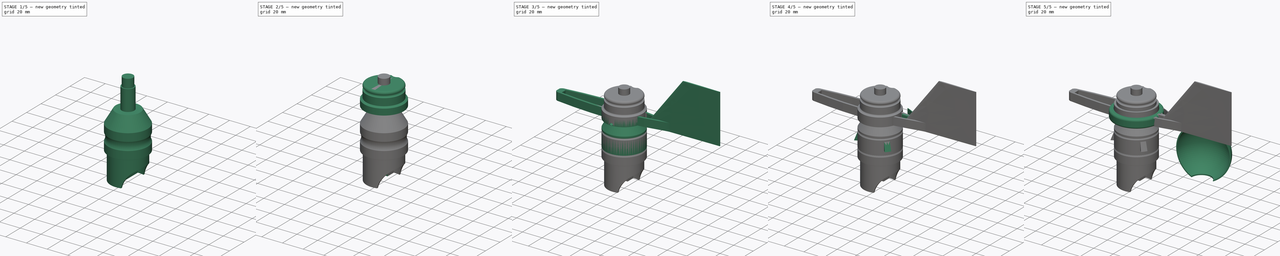
[diagram: build sequence overview — one tinted view per stage of 5, left to right]
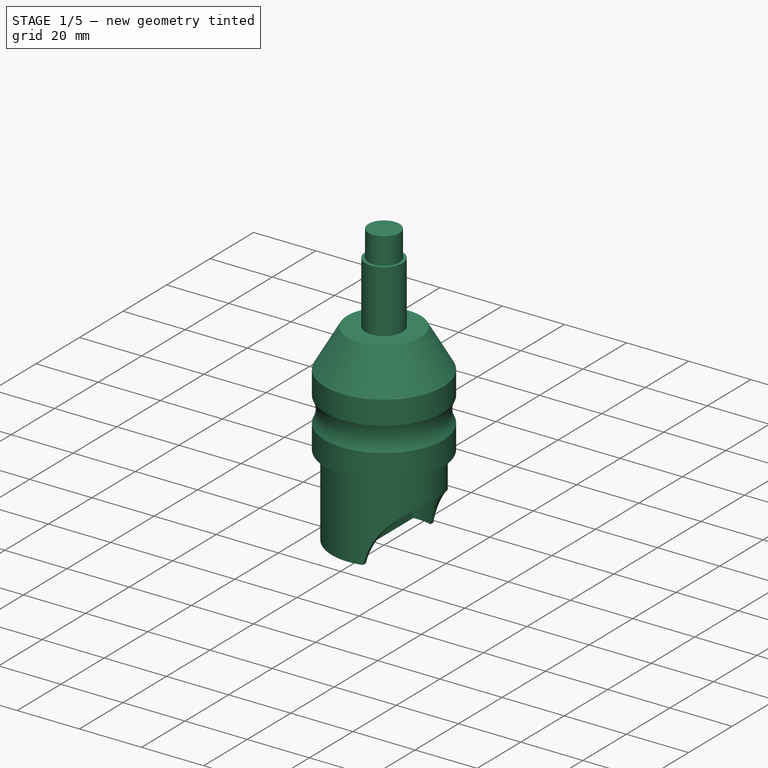
[diagram: stage 1 of 5 — iso view after this stage's code; geometry added in this stage tinted green]
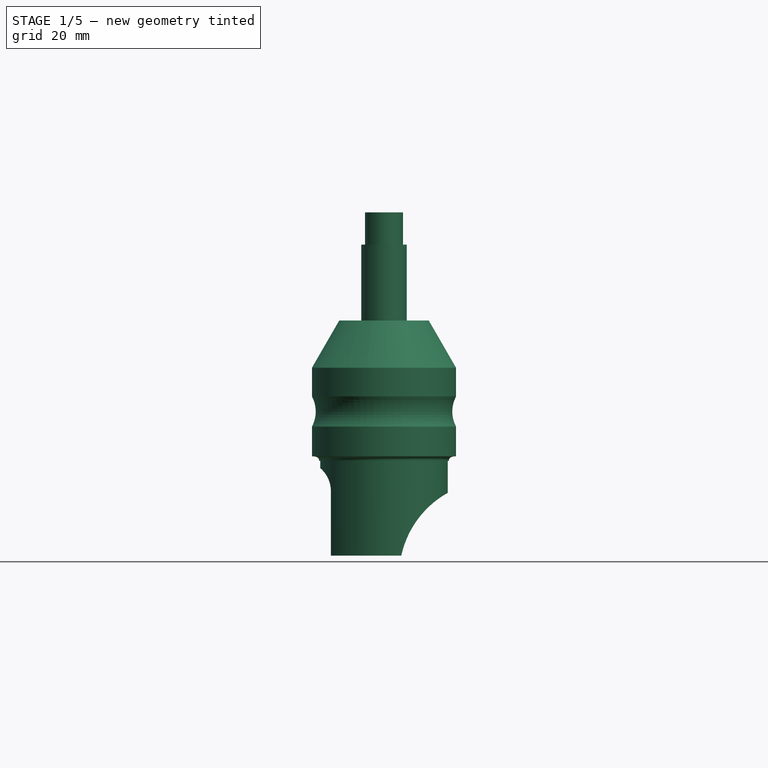
[diagram: stage 1 of 5 — front view after this stage's code; geometry added in this stage tinted green]
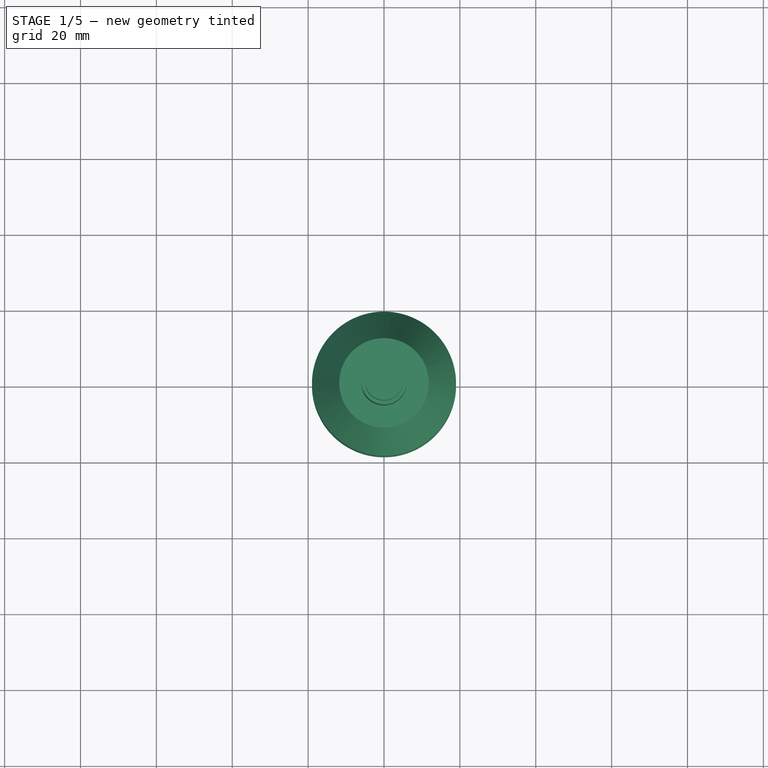
[diagram: stage 1 of 5 — top view after this stage's code; geometry added in this stage tinted green]
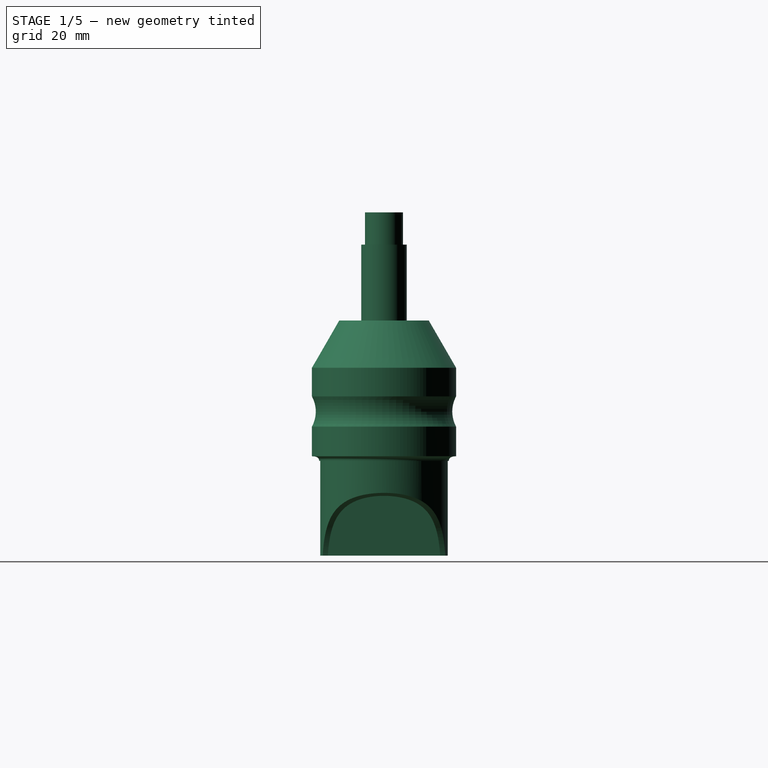
[diagram: stage 1 of 5 — right view after this stage's code; geometry added in this stage tinted green]
FCSTD DOCUMENT  (FreeCAD 1.1R20260414 (Git shallow))
Label: windnerd-anemometer-freecad
Comment: <copyright redacted>
License: Creative Commons Attribution-ShareAlike 4.0
LicenseURL: https://creativecommons.org/licenses/by-sa/4.0/
objects: Sketcher::SketchObject×49, PartDesign::Pocket×16, PartDesign::Revolution×12, App::Point×11, PartDesign::Plane×10, PartDesign::Body×10, PartDesign::Groove×4, PartDesign::Pad×4, PartDesign::AdditivePipe×3, PartDesign::FeatureBase×2, PartDesign::SubtractiveLoft×2, App::Part×1, PartDesign::Mirrored×1, PartDesign::AdditiveLoft×1
note: 250 computed .brp shape members not serialized (recipe doc carries the construction recipe); baked Part::Feature solids carry a one-line shape summary decoded from their .brp

FEATURE [PartDesign::Body] Body011  label="4-vane-support-low"
  AllowCompound = false
  Group = -> [Sketch035,Revolution011]
  Origin = -> Origin016
  Placement = pos=(0,0,48) rot=(1,0,0;0rad)
  Tip = -> Revolution011
FEATURE [Sketcher::SketchObject] Sketch043
  ArcFitTolerance = 0
  AttachmentSupport = -> [YZ_Plane020]
  ExternalTypes = [0]
  FullyConstrained = true
  MakeInternals = false
  MapMode = 5
  Placement = pos=(0,0,0) rot=(0.57735,0.57735,0.57735;2.0944rad)
  _ExternalGeoVersion = 0
  sketch-geometry (31):
    g0: LineSegment StartX=19 StartY=-12.4708 StartZ=0 EndX=19 EndY=-19 EndZ=0
    g1: LineSegment StartX=11.8 StartY=0 StartZ=0 EndX=0 EndY=0 EndZ=0
    g2: ArcOfCircle CenterX=0 CenterY=-18.5078 CenterZ=0 NormalX=0 NormalY=0 NormalZ=1 AngleXU=0 Radius=15.5078 StartAngle=6.25144 EndAngle=7.85398
    g3: LineSegment StartX=0 StartY=0 StartZ=0 EndX=4.7e-15 EndY=-3 EndZ=0
    g4: LineSegment StartX=11.8 StartY=0 StartZ=0 EndX=19 EndY=-12.4708 EndZ=0
    g5: LineSegment [constr] StartX=15.5 StartY=-19 StartZ=0 EndX=19 EndY=-19 EndZ=0
    g6: LineSegment StartX=16.8 StartY=-62 StartZ=0 EndX=15.5 EndY=-62 EndZ=0
    g7: LineSegment StartX=15.5 StartY=-62 StartZ=0 EndX=15.5 EndY=-19 EndZ=0
    g8: LineSegment [constr] StartX=19 StartY=-37 StartZ=0 EndX=16.8 EndY=-37 EndZ=0
    g9: LineSegment StartX=16.8 StartY=-37 StartZ=0 EndX=16.8 EndY=-62 EndZ=0
    g10: LineSegment [constr] StartX=19 StartY=-37 StartZ=0 EndX=19 EndY=-35.8 EndZ=0
    g11: LineSegment [constr] StartX=17.1 StartY=-35.8 StartZ=0 EndX=19 EndY=-35.8 EndZ=0
    g12: LineSegment StartX=19 StartY=-20 StartZ=0 EndX=19 EndY=-19 EndZ=0
    g13: LineSegment StartX=19 StartY=-35.8 StartZ=0 EndX=19 EndY=-28 EndZ=0
    g14: Circle [constr] CenterX=19 CenterY=-20 CenterZ=0 NormalX=0 NormalY=0 NormalZ=1 AngleXU=0 Radius=1
    g15: Circle [constr] CenterX=17 CenterY=-24 CenterZ=0 NormalX=0 NormalY=0 NormalZ=1 AngleXU=0 Radius=1
    g16: Circle [constr] CenterX=19 CenterY=-28 CenterZ=0 NormalX=0 NormalY=0 NormalZ=1 AngleXU=0 Radius=1
    g17: BSplineCurve PolesCount=3 KnotsCount=2 Degree=2 IsPeriodic=0
    g18: GeomPoint [constr] X=19 Y=-20 Z=0
    g19: GeomPoint [constr] X=19 Y=-28 Z=0
    g20: LineSegment [constr] StartX=19 StartY=-20 StartZ=0 EndX=19 EndY=-24 EndZ=0
    g21: LineSegment [constr] StartX=19 StartY=-24 StartZ=0 EndX=19 EndY=-28 EndZ=0
    g22: LineSegment [constr] StartX=17 StartY=-24 StartZ=0 EndX=19 EndY=-24 EndZ=0
    g23: LineSegment StartX=16.8 StartY=-37 StartZ=0 EndX=17.1 EndY=-37 EndZ=0
    g24: Circle [constr] CenterX=17.1 CenterY=-37 CenterZ=0 NormalX=0 NormalY=0 NormalZ=1 AngleXU=0 Radius=1
    g25: Circle [constr] CenterX=17.1 CenterY=-35.8 CenterZ=0 NormalX=0 NormalY=0 NormalZ=1 AngleXU=0 Radius=1
    g26: Circle [constr] CenterX=19 CenterY=-35.8 CenterZ=0 NormalX=0 NormalY=0 NormalZ=1 AngleXU=0 Radius=1
    g27: BSplineCurve PolesCount=3 KnotsCount=2 Degree=2 IsPeriodic=0
    g28: GeomPoint [constr] X=17.1 Y=-37 Z=0
    g29: GeomPoint [constr] X=19 Y=-35.8 Z=0
    g30: LineSegment [constr] StartX=17.1 StartY=-37 StartZ=0 EndX=17.1 EndY=-35.8 EndZ=0
  constraints (77):
    c: Vertical(g0)
    c: DistanceX(g-1,g0) = 19
    c: PointOnObject(g1,g-1)
    c: DistanceX(g-1,g1) = 11.8
    c: PointOnObject(g2,g-2)
    c: Coincident(g1,g-1)
    c: DistanceY(g2,g1) = 3
    c: Distance(g0,g-1) = 19
    c: Coincident(g3,g1)
    c: Coincident(g4,g0)
    c: Angle(g4,g0) = 2.61799
    c: Coincident(g5,g2)
    c: Coincident(g5,g0)
    c: PointOnObject(g2,g-2)
    c: Coincident(g4,g1)
    c: Coincident(g3,g2)
    c: Horizontal(g5)
    c: Distance(g5,g5) = 3.5
    c: DistanceY(g9,g0) = 43
    c: Coincident(g6,g9)
    c: Coincident(g7,g6)
    c: Coincident(g7,g2)
    c: Vertical(g7)
    c: Horizontal(g6)
    c: Coincident(g8,g9)
    c: Vertical(g9)
    c: Horizontal(g8)
    c: Distance(g8,g8) = 2.2
    c: DistanceY(g9,g9) = 25
    c: Coincident(g10,g8)
    c: Vertical(g10)
    c: Coincident(g13,g10)
    c: Coincident(g12,g0)
    c: Horizontal(g11)
    c: DistanceY(g10,g10) = 1.2
    c: Vertical(g12)
    c: Vertical(g13)
    c: Weight(g14) = 1
    c: Equal(g14,g15)
    c: Equal(g14,g16)
    c: InternalAlignment(g14,g17)
    c: InternalAlignment(g15,g17)
    c: InternalAlignment(g16,g17)
    c: InternalAlignment(g18,g17)
    c: InternalAlignment(g19,g17)
    c: Coincident(g14,g12)
    c: Coincident(g16,g13)
    c: Coincident(g20,g17)
    c: Vertical(g20)
    c: Coincident(g21,g20)
    c: Coincident(g21,g17)
    c: Vertical(g21)
    c: Equal(g20,g21)
    c: Coincident(g22,g15)
    c: Coincident(g22,g20)
    c: Horizontal(g22)
    c: DistanceX(g22,g22) = 2
    c: DistanceY(g13,g12) = 8
    c: DistanceY(g12,g12) = 1
    c: PointOnObject(g23,g8)
    c: Distance(g23,g23) = 0.3
    c: Weight(g24) = 1
    c: Equal(g24,g25)
    c: Equal(g24,g26)
    c: InternalAlignment(g24,g27)
    c: InternalAlignment(g25,g27)
    c: InternalAlignment(g26,g27)
    c: InternalAlignment(g28,g27)
    c: InternalAlignment(g29,g27)
    c: Coincident(g24,g23)
    c: Coincident(g26,g11)
    c: Coincident(g30,g27)
    c: Vertical(g30)
    c: Coincident(g25,g30)
    c: Coincident(g27,g10)
    c: Coincident(g11,g25)
    c: Coincident(g23,g8)
FEATURE [PartDesign::Revolution] Revolution015  label="Revolution-Main005"
  Angle = 360
  Angle2 = 60
  Axis = (0,0,1)
  Base = (0,0,0)
  FuseOrder = 1
  Placement = pos=(0,0,0) rot=(1,1,1;2.0944rad)
  Profile = -> Sketch043
  ReferenceAxis = -> Sketch043 [V_Axis]
  Reversed = true
  Suppressed = false
  Type = 0
FEATURE [PartDesign::Plane] DatumPlane012
  AttachmentOffset = pos=(0,0,-88) rot=(0,0,1;0rad)
  AttachmentSupport = -> [XY_Plane020]
  Length = 60
  MapMode = 5
  Placement = pos=(0,0,-88) rot=(0,0,1;0rad)
  ResizeMode = 0
  Width = 60
FEATURE [Sketcher::SketchObject] Sketch111
  ArcFitTolerance = 1e-06
  AttachmentSupport = -> [DatumPlane012]
  ExternalTypes = [0]
  FullyConstrained = true
  MakeInternals = false
  MapMode = 5
  Placement = pos=(0,0,-88) rot=(0,0,1;0rad)
  _ExternalGeoVersion = 0
  sketch-geometry (2):
    g0: Circle CenterX=0 CenterY=0 CenterZ=0 NormalX=0 NormalY=0 NormalZ=1 AngleXU=0 Radius=17
    g1: Circle CenterX=0 CenterY=0 CenterZ=0 NormalX=0 NormalY=0 NormalZ=1 AngleXU=0 Radius=25
  constraints (4):
    c: Diameter(g0) = 34
    c: Coincident(g0,g-1)
    c: Coincident(g1,g0)
    c: Diameter(g1) = 50
FEATURE [PartDesign::Revolution] Revolution022  label="Revolution-Internal Dome"
  Angle = 180
  Angle2 = 60
  Axis = (1e-16,-1e-16,1)
  Base = (-1.42,0,0)
  BaseFeature = -> Revolution015
  FuseOrder = 1
  Placement = pos=(0,0,0) rot=(1,1,1;2.0944rad)
  Profile = -> Sketch083
  ReferenceAxis = -> Sketch083 [V_Axis]
  Reversed = true
  Suppressed = false
  Type = 0
FEATURE [PartDesign::Body] Body008  label="6-cups-axle"
  AllowCompound = false
  Group = -> [Sketch031,Revolution010,Sketch036,Revolution012,DatumPlane002,Sketch037,Revolution013,DatumPlane003,Sketch038,Revolution014,Sketch062,Pocket,Sketch139,Pocket046]
  Origin = -> Origin011
  Placement = pos=(0,0,40) rot=(0,1,0;0rad)
  Tip = -> Pocket046
FEATURE [Sketcher::SketchObject] Sketch151
  ArcFitTolerance = 1e-06
  AttachmentSupport = -> [YZ_Plane020]
  ExternalTypes = [0]
  FullyConstrained = true
  MakeInternals = false
  MapMode = 5
  Placement = pos=(0,0,0) rot=(0.57735,0.57735,0.57735;2.0944rad)
  _ExternalGeoVersion = 0
  sketch-geometry (6):
    g0: LineSegment StartX=0 StartY=0 StartZ=0 EndX=6 EndY=0 EndZ=0
    g1: LineSegment StartX=6 StartY=0 StartZ=0 EndX=6 EndY=20 EndZ=0
    g2: LineSegment StartX=0 StartY=28.5 StartZ=0 EndX=0 EndY=0 EndZ=0
    g3: LineSegment StartX=5 StartY=28.5 StartZ=0 EndX=0 EndY=28.5 EndZ=0
    g4: LineSegment StartX=6 StartY=20 StartZ=0 EndX=5 EndY=20 EndZ=0
    g5: LineSegment StartX=5 StartY=20 StartZ=0 EndX=5 EndY=28.5 EndZ=0
  constraints (17):
    c: Distance(g0) = 6
    c: Coincident(g0,g-1)
    c: PointOnObject(g0,g-1)
    c: Distance(g1) = 20
    c: Coincident(g1,g0)
    c: Vertical(g1)
    c: Coincident(g4,g1)
    c: Coincident(g2,g0)
    c: Vertical(g2)
    c: Coincident(g5,g3)
    c: Horizontal(g3)
    c: Coincident(g4,g5)
    c: Horizontal(g4)
    c: Vertical(g5)
    c: Distance(g5,g5) = 8.5
    c: Distance(g4,g4) = 1
    c: Coincident(g3,g2)
FEATURE [PartDesign::Revolution] Revolution023  label="Revolution-Shaft"
  Angle = 360
  Angle2 = 60
  Axis = (0,0,1)
  Base = (0,0,0)
  BaseFeature = -> Revolution022
  FuseOrder = 1
  Placement = pos=(0,0,0) rot=(1,1,1;2.0944rad)
  Profile = -> Sketch151
  ReferenceAxis = -> Sketch151 [V_Axis]
  Reversed = true
  Suppressed = false
  Type = 0
FEATURE [PartDesign::Pocket] Pocket013  label="Pocket-PCB conduit"
  BaseFeature = -> Revolution023
  Direction = (0,0,-1)
  Length = 25.5
  Length2 = 5
  Placement = pos=(0,0,0) rot=(1,1,1;2.0944rad)
  Profile = -> Sketch045
  ReferenceAxis = -> Sketch045 [N_Axis]
  Reversed = true
  SideType = 0
  Suppressed = false
  Type = 0
  Type2 = 0
FEATURE [PartDesign::Body] Body017  label="2-vane-axle"
  AllowCompound = false
  Group = -> [Sketch063,Revolution016,Sketch064,Pocket005,Sketch093,Pad011,Sketch101,Pocket022,Sketch174,Pocket055]
  Origin = -> Origin024
  Placement = pos=(0,0,80) rot=(1,0,0;0rad)
  Tip = -> Pocket055
FEATURE [Sketcher::SketchObject] Sketch175
  ArcFitTolerance = 1e-06
  AttachmentSupport = -> [Origin020]
  ExternalTypes = [0]
  FullyConstrained = true
  MakeInternals = false
  MapMode = 5
  Placement = pos=(0,0,0) rot=(1,0,0;1.5708rad)
  _ExternalGeoVersion = 1
  sketch-geometry (4):
    g0: LineSegment StartX=-5 StartY=-63 StartZ=0 EndX=-5 EndY=-53.5027 EndZ=0
    g1: LineSegment StartX=-5 StartY=-63 StartZ=0 EndX=0 EndY=-63 EndZ=0
    g2: ArcOfCircle CenterX=0 CenterY=-55.32 CenterZ=0 NormalX=0 NormalY=0 NormalZ=1 AngleXU=0 Radius=5.32 StartAngle=1.5708 EndAngle=2.79299
    g3: LineSegment StartX=3e-16 StartY=-50 StartZ=0 EndX=0 EndY=-63 EndZ=0
  constraints (13):
    c: Vertical(g0)
    c: Coincident(g1,g0)
    c: PointOnObject(g1,g-2)
    c: Horizontal(g1)
    c: PointOnObject(g2,g-2)
    c: Coincident(g2,g0)
    c: PointOnObject(g2,g-2)
    c: Coincident(g3,g2)
    c: Coincident(g3,g1)
    c: Distance(g2,g-1) = 50
    c: DistanceY(g3,g3) = 13
    c: DistanceX(g1,g1) = 5
    c: Radius(g2) = 5.32
FEATURE [Sketcher::SketchObject] Sketch176
  ArcFitTolerance = 1e-06
  AttachmentOffset = pos=(0,0,0) rot=(0,0,1;3.14159rad)
  AttachmentSupport = -> [Origin020]
  ExternalTypes = [0]
  FullyConstrained = true
  MakeInternals = false
  MapMode = 5
  Placement = pos=(0,0,0) rot=(0,0,1;3.14159rad)
  _ExternalGeoVersion = 1
  expr: Constraints[10] = Sketch045.Constraints[10]
  expr: Constraints[19] = Sketch045.Constraints[19]
  expr: Constraints[6] = Sketch045.Constraints[6]
  expr: Constraints[7] = Sketch045.Constraints[7]
  expr: Constraints[9] = Sketch045.Constraints[9]
  sketch-geometry (7):
    g0: LineSegment StartX=2.4e-15 StartY=-3.55 StartZ=0 EndX=1.4 EndY=-3.55 EndZ=0
    g1: LineSegment StartX=1.4 StartY=-3.55 StartZ=0 EndX=1.4 EndY=3.55 EndZ=0
    g2: LineSegment StartX=1.4 StartY=3.55 StartZ=0 EndX=0 EndY=3.55 EndZ=0
    g3: GeomPoint [constr] X=0 Y=0 Z=0
    g4: LineSegment StartX=0 StartY=3.55 StartZ=0 EndX=0 EndY=2.55 EndZ=0
    g5: LineSegment StartX=2.4e-15 StartY=-3.55 StartZ=0 EndX=2.4e-15 EndY=-2.55 EndZ=0
    g6: ArcOfCircle CenterX=0.507445 CenterY=0 CenterZ=0 NormalX=0 NormalY=0 NormalZ=1 AngleXU=0 Radius=2.6 StartAngle=1.76723 EndAngle=4.51596
  constraints (20):
    c: Coincident(g0,g1)
    c: Coincident(g1,g2)
    c: Horizontal(g0)
    c: Horizontal(g2)
    c: Vertical(g1)
    c: Coincident(g3,g-1)
    c: Distance(g1,g1) = 7.1
    c: Distance(g2,g2) = 1.4
    c: Equal(g0,g2)
    c: Distance(g-2,g1) = 1.4
    c: Distance(g4) = 1
    c: Coincident(g4,g2)
    c: Vertical(g4)
    c: Coincident(g5,g0)
    c: Vertical(g5)
    c: Equal(g5,g4)
    c: Coincident(g6,g4)
    c: Coincident(g6,g5)
    c: PointOnObject(g6,g-1)
    c: Radius(g6) = 2.6
FEATURE [Sketcher::SketchObject] Sketch177
  ArcFitTolerance = 1e-06
  AttachmentOffset = pos=(0,0,-4) rot=(0,0,1;0rad)
  AttachmentSupport = -> [Origin020]
  ExternalTypes = [0]
  FullyConstrained = true
  MakeInternals = false
  MapMode = 5
  Placement = pos=(0,0,-4) rot=(0,0,1;0rad)
  _ExternalGeoVersion = 1
  sketch-geometry (3):
    g0: LineSegment StartX=-1.4 StartY=3.75 StartZ=0 EndX=-1.4 EndY=0 EndZ=0
    g1: LineSegment StartX=-1.4 StartY=0 StartZ=0 EndX=-1.4 EndY=-3.75 EndZ=0
    g2: ArcOfCircle CenterX=-1.12596 CenterY=-1e-16 CenterZ=0 NormalX=0 NormalY=0 NormalZ=1 AngleXU=0 Radius=3.76 StartAngle=4.63944 EndAngle=7.92693
  constraints (10):
    c: PointOnObject(g0,g-1)
    c: Vertical(g0)
    c: Coincident(g1,g0)
    c: Vertical(g1)
    c: Equal(g0,g1)
    c: DistanceY(g1,g0) = 7.5
    c: DistanceX(g0,g-1) = 1.4
    c: Coincident(g2,g0)
    c: Coincident(g2,g1)
    c: Radius(g2) = 3.76
FEATURE [PartDesign::SubtractiveLoft] SubtractiveLoft001  label="Loft-Progressive conduit entry"
  BaseFeature = -> Pocket013
  Closed = false
  Placement = pos=(0,0,0) rot=(1,1,1;2.0944rad)
  Profile = -> Sketch176
  Refine = true
  Ruled = false
  Sections = -> [Sketch177]
  Suppressed = false
FEATURE [PartDesign::Pocket] Pocket014  label="Pocket-Wall arch"
  BaseFeature = -> SubtractiveLoft001
  Direction = (0,1,-2e-16)
  Length = 5
  Length2 = 5
  Placement = pos=(0,0,0) rot=(1,1,1;2.0944rad)
  Profile = -> Sketch085
  ReferenceAxis = -> Sketch085 [N_Axis]
  SideType = 2
  Suppressed = false
  Type = 1
  Type2 = 0
FEATURE [PartDesign::Pocket] Pocket029
  BaseFeature = -> Pocket014
  Direction = (0,0,-1)
  Length = 42
  Length2 = 5
  Placement = pos=(0,0,0) rot=(1,1,1;2.0944rad)
  Profile = -> Sketch111
  ReferenceAxis = -> Sketch111 [N_Axis]
  Reversed = true
  SideType = 0
  Suppressed = false
  Type = 0
  Type2 = 0
FEATURE [PartDesign::Pad] Pad015
  BaseFeature = -> Pocket029
  Direction = (0,0,1)
  Length = 43
  Length2 = 10
  Placement = pos=(0,0,0) rot=(1,1,1;2.0944rad)
  Profile = -> Sketch066
  ReferenceAxis = -> Sketch066 [N_Axis]
  Reversed = true
  SideType = 0
  Suppressed = false
  Type = 0
  Type2 = 0
FEATURE [PartDesign::Pocket] Pocket015  label="Pocket-Mount alignment"
  BaseFeature = -> Pad015
  Direction = (0,1,-2e-16)
  Length = 5
  Length2 = 5
  Placement = pos=(0,0,0) rot=(1,1,1;2.0944rad)
  Profile = -> Sketch090
  ReferenceAxis = -> Sketch090 [N_Axis]
  SideType = 2
  Suppressed = false
  Type = 1
  Type2 = 0
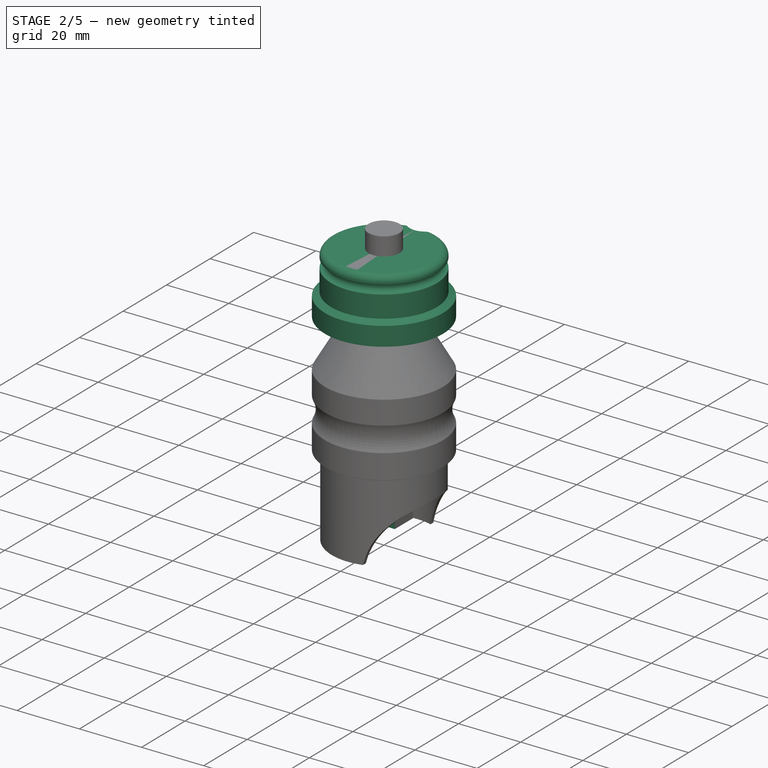
[diagram: stage 2 of 5 — iso view after this stage's code; geometry added in this stage tinted green]
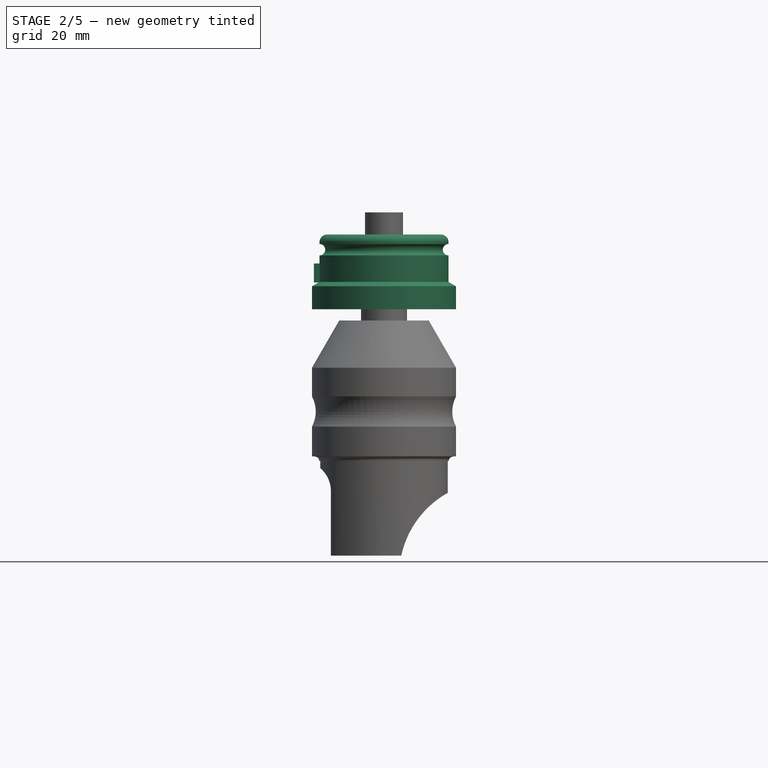
[diagram: stage 2 of 5 — front view after this stage's code; geometry added in this stage tinted green]
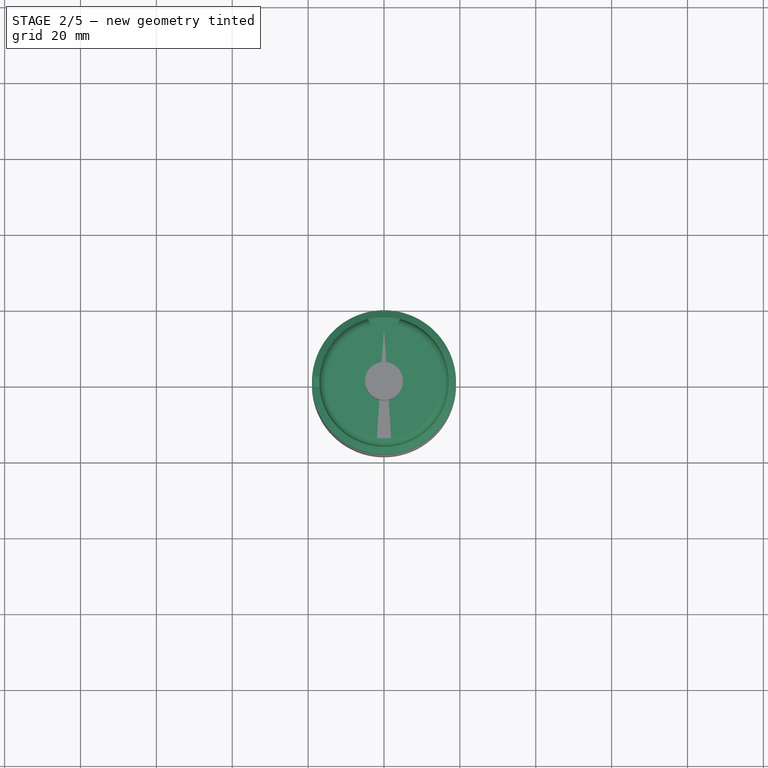
[diagram: stage 2 of 5 — top view after this stage's code; geometry added in this stage tinted green]
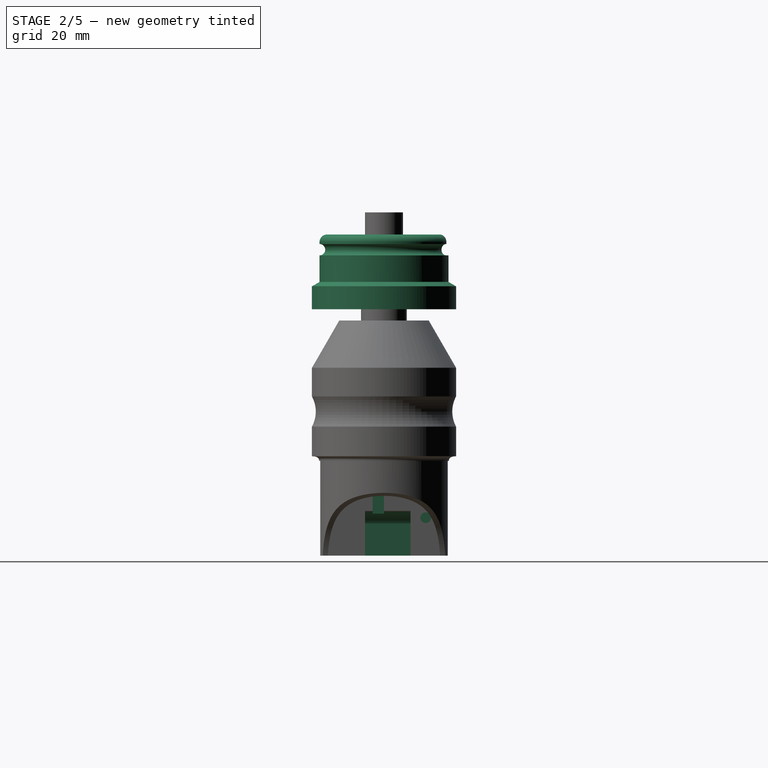
[diagram: stage 2 of 5 — right view after this stage's code; geometry added in this stage tinted green]
FEATURE [Sketcher::SketchObject] Sketch063
  ArcFitTolerance = 1e-06
  AttachmentSupport = -> [YZ_Plane024]
  ExternalTypes = [0]
  FullyConstrained = true
  MakeInternals = false
  MapMode = 5
  Placement = pos=(0,0,0) rot=(0.57735,0.57735,0.57735;2.0944rad)
  _ExternalGeoVersion = 0
  sketch-geometry (20):
    g0: LineSegment StartX=6.05 StartY=9 StartZ=0 EndX=11 EndY=9 EndZ=0
    g1: LineSegment StartX=0 StartY=0 StartZ=0 EndX=6.05 EndY=0 EndZ=0
    g2: LineSegment StartX=6.05 StartY=0 StartZ=0 EndX=6.05 EndY=9 EndZ=0
    g3: LineSegment StartX=0 StartY=22.6547 StartZ=0 EndX=0 EndY=0 EndZ=0
    g4: LineSegment StartX=18.5 StartY=2.93782 StartZ=0 EndX=19 EndY=2.93782 EndZ=0
    g5: LineSegment StartX=11 StartY=9 StartZ=0 EndX=11 EndY=10 EndZ=0
    g6: LineSegment StartX=11 StartY=10 StartZ=0 EndX=15 EndY=10 EndZ=0
    g7: LineSegment StartX=17 StartY=17.1547 StartZ=0 EndX=17 EndY=10.1547 EndZ=0
    g8: LineSegment StartX=17 StartY=10.1547 StartZ=0 EndX=19 EndY=9 EndZ=0
    g9: LineSegment StartX=19 StartY=9 StartZ=0 EndX=19 EndY=2.93782 EndZ=0
    g10: LineSegment StartX=0 StartY=22.6547 StartZ=0 EndX=15 EndY=22.6547 EndZ=0
    g11: LineSegment [constr] StartX=17 StartY=18.6547 StartZ=0 EndX=17 EndY=17.1547 EndZ=0
    g12: LineSegment StartX=17 StartY=20.6547 StartZ=0 EndX=17 EndY=20.1547 EndZ=0
    g13: LineSegment [constr] StartX=17 StartY=20.1547 StartZ=0 EndX=17 EndY=18.6547 EndZ=0
    g14: ArcOfCircle CenterX=17 CenterY=18.6547 CenterZ=0 NormalX=0 NormalY=0 NormalZ=1 AngleXU=0 Radius=1.5 StartAngle=1.5708 EndAngle=4.71239
    g15: LineSegment StartX=15 StartY=9 StartZ=0 EndX=18.5 EndY=2.93782 EndZ=0
    g16: LineSegment StartX=15 StartY=10 StartZ=0 EndX=15 EndY=9 EndZ=0
    g17: LineSegment [constr] StartX=15 StartY=9 StartZ=0 EndX=19 EndY=9 EndZ=0
    g18: ArcOfCircle CenterX=15 CenterY=20.6547 CenterZ=0 NormalX=0 NormalY=0 NormalZ=1 AngleXU=0 Radius=2 StartAngle=-9e-16 EndAngle=1.5708
    g19: GeomPoint [constr] X=17 Y=22.6547 Z=0
  constraints (55):
    c: Horizontal(g0)
    c: Coincident(g1,g-1)
    c: PointOnObject(g1,g-1)
    c: Coincident(g2,g1)
    c: Coincident(g2,g0)
    c: Vertical(g2)
    c: Distance(g1,g1) = 6.05
    c: Distance(g0,g-2) = 11
    c: DistanceY(g2,g2) = 9
    c: PointOnObject(g3,g-2)
    c: Coincident(g3,g1)
    c: Coincident(g10,g3)
    c: DistanceX(g4,g4) = 0.5
    c: Coincident(g9,g4)
    c: Distance(g9,g-2) = 19
    c: Coincident(g5,g0)
    c: Vertical(g5)
    c: Coincident(g6,g5)
    c: Horizontal(g6)
    c: Distance(g5,g5) = 1
    c: Horizontal(g4)
    c: Distance(g6,g6) = 4
    c: Coincident(g7,g8)
    c: Coincident(g8,g9)
    c: Vertical(g9)
    c: Vertical(g7)
    c: DistanceX(g8,g8) = 2
    c: DistanceY(g7,g7) = 7
    c: Angle(g8,g7) = 2.0944
    c: Horizontal(g10)
    c: Coincident(g11,g7)
    c: Vertical(g11)
    c: Distance(g12,g19) = 2.5
    c: Vertical(g12)
    c: Coincident(g13,g12)
    c: Coincident(g13,g11)
    c: Vertical(g13)
    c: Coincident(g14,g11)
    c: Coincident(g14,g12)
    c: Coincident(g14,g7)
    c: Radius(g14) = 1.5
    c: Coincident(g15,g4)
    c: Angle(g9,g15) = 0.523599
    c: Coincident(g16,g6)
    c: Vertical(g16)
    c: Equal(g5,g16)
    c: Coincident(g15,g16)
    c: Coincident(g17,g15)
    c: Coincident(g17,g8)
    c: Horizontal(g17)
    c: PointOnObject(g19,g10)
    c: PointOnObject(g19,g12)
    c: Tangent(g10,g18) = 1.5708
    c: Tangent(g12,g18) = 1.5708
    c: Radius(g18) = 2
FEATURE [PartDesign::Revolution] Revolution016  label="Revolution-Main001"
  Angle = 360
  Angle2 = 60
  Axis = (0,0,1)
  Base = (0,0,0)
  FuseOrder = 1
  Placement = pos=(0,0,0) rot=(1,1,1;2.0944rad)
  Profile = -> Sketch063
  ReferenceAxis = -> Sketch063 [V_Axis]
  Reversed = true
  Suppressed = false
  Type = 0
FEATURE [Sketcher::SketchObject] Sketch064
  ArcFitTolerance = 1e-06
  AttachmentSupport = -> [Revolution016]
  ExternalTypes = [0]
  FullyConstrained = true
  MakeInternals = false
  MapMode = 5
  Placement = pos=(0,0,0) rot=(0.707107,0.707107,0;3.14159rad)
  _ExternalGeoVersion = 0
  sketch-geometry (5):
    g0: LineSegment StartX=-3.1 StartY=-2 StartZ=0 EndX=3.1 EndY=-2 EndZ=0
    g1: LineSegment StartX=3.1 StartY=-2 StartZ=0 EndX=3.1 EndY=2 EndZ=0
    g2: LineSegment StartX=3.1 StartY=2 StartZ=0 EndX=-3.1 EndY=2 EndZ=0
    g3: LineSegment StartX=-3.1 StartY=2 StartZ=0 EndX=-3.1 EndY=-2 EndZ=0
    g4: GeomPoint [constr] X=0 Y=0 Z=0
  constraints (12):
    c: Coincident(g0,g1)
    c: Coincident(g1,g2)
    c: Coincident(g2,g3)
    c: Coincident(g3,g0)
    c: Horizontal(g0)
    c: Horizontal(g2)
    c: Vertical(g1)
    c: Vertical(g3)
    c: Symmetric(g2,g0,g4)
    c: Coincident(g4,g-1)
    c: DistanceY(g1,g1) = 4
    c: Distance(g2,g2) = 6.2
FEATURE [PartDesign::Pocket] Pocket005  label="Pocket-Magnet"
  BaseFeature = -> Revolution016
  Direction = (0,0,1)
  Length = 4.2
  Length2 = 5
  Placement = pos=(0,0,0) rot=(1,1,1;2.0944rad)
  Profile = -> Sketch064
  ReferenceAxis = -> Sketch064 [N_Axis]
  SideType = 0
  Suppressed = false
  Type = 0
  Type2 = 0
FEATURE [Sketcher::SketchObject] Sketch081
  ArcFitTolerance = 1e-06
  AttachmentSupport = -> [XY_Plane017]
  ExternalTypes = [0]
  FullyConstrained = true
  MakeInternals = false
  MapMode = 5
  _ExternalGeoVersion = 0
  sketch-geometry (1):
    g0: Circle CenterX=0 CenterY=0 CenterZ=0 NormalX=0 NormalY=0 NormalZ=1 AngleXU=0 Radius=19
  constraints (2):
    c: Diameter(g0) = 38
    c: Coincident(g0,g-1)
FEATURE [Sketcher::SketchObject] Sketch083
  ArcFitTolerance = 1e-06
  AttacherType = Attacher::AttachEngine3D
  AttachmentOffset = pos=(0,0,-1.42) rot=(0,0,1;0rad)
  ExternalTypes = [0]
  FullyConstrained = true
  MakeInternals = false
  MapMode = 5
  Placement = pos=(-1.42,0,0) rot=(0.57735,0.57735,0.57735;2.0944rad)
  _ExternalGeoVersion = 0
  sketch-geometry (3):
    g0: ArcOfCircle CenterX=0 CenterY=-19 CenterZ=0 NormalX=0 NormalY=0 NormalZ=1 AngleXU=0 Radius=17 StartAngle=1.5708 EndAngle=3.14159
    g1: LineSegment StartX=1e-15 StartY=-2 StartZ=0 EndX=0 EndY=-19 EndZ=0
    g2: LineSegment StartX=0 StartY=-19 StartZ=0 EndX=-17 EndY=-19 EndZ=0
  constraints (9):
    c: PointOnObject(g0,g-2)
    c: PointOnObject(g0,g-2)
    c: Coincident(g1,g0)
    c: Coincident(g1,g0)
    c: Coincident(g2,g0)
    c: Coincident(g2,g0)
    c: Horizontal(g2)
    c: DistanceX(g2,g2) = 17
    c: PointOnObject(g0,g-3)
FEATURE [PartDesign::Plane] DatumPlane010
  AttachmentOffset = pos=(0,-47,0) rot=(0,0,1;0rad)
  AttachmentSupport = -> [XZ_Plane020]
  Length = 63.4536
  MapMode = 5
  Placement = pos=(0,-1.04e-14,-47) rot=(1,0,0;1.5708rad)
  ResizeMode = 0
  Width = 103.954
FEATURE [Sketcher::SketchObject] Sketch085
  ArcFitTolerance = 1e-06
  AttachmentSupport = -> [DatumPlane010]
  ExternalTypes = [0]
  FullyConstrained = true
  MakeInternals = false
  MapMode = 5
  Placement = pos=(0,-1.04e-14,-47) rot=(1,0,0;1.5708rad)
  _ExternalGeoVersion = 0
  sketch-geometry (6):
    g0: ArcOfCircle CenterX=29 CenterY=-20.2693 CenterZ=0 NormalX=0 NormalY=0 NormalZ=1 AngleXU=0 Radius=25 StartAngle=1.81316 EndAngle=3.14159
    g1: LineSegment StartX=4 StartY=-20.2693 StartZ=0 EndX=4 EndY=-46 EndZ=0
    g2: LineSegment StartX=4 StartY=-46 StartZ=0 EndX=23 EndY=-46 EndZ=0
    g3: LineSegment StartX=23 StartY=-46 StartZ=0 EndX=23 EndY=4 EndZ=0
    g4: LineSegment [constr] StartX=4 StartY=-20.2693 StartZ=0 EndX=4 EndY=4 EndZ=0
    g5: LineSegment [constr] StartX=4 StartY=4 StartZ=0 EndX=23 EndY=4 EndZ=0
  constraints (17):
    c: Coincident(g1,g0)
    c: Horizontal(g2)
    c: Coincident(g3,g2)
    c: Coincident(g3,g0)
    c: Vertical(g3)
    c: Radius(g0) = 25
    c: Vertical(g1)
    c: Coincident(g2,g1)
    c: Tangent(g4,g0) = 1.5708
    c: Vertical(g4)
    c: Coincident(g5,g4)
    c: Coincident(g5,g0)
    c: Horizontal(g5)
    c: DistanceY(g-1,g0) = 4
    c: DistanceX(g5,g5) = 19
    c: DistanceY(g3,g3) = 50
    c: Distance(g-2,g1) = 4
FEATURE [Sketcher::SketchObject] Sketch090
  ArcFitTolerance = 1e-06
  AttachmentSupport = -> [XZ_Plane020]
  ExternalTypes = [0]
  FullyConstrained = true
  MakeInternals = false
  MapMode = 5
  Placement = pos=(0,0,0) rot=(1,0,0;1.5708rad)
  _ExternalGeoVersion = 0
  sketch-geometry (7):
    g0: LineSegment [constr] StartX=0 StartY=0 StartZ=0 EndX=0 EndY=-45 EndZ=0
    g1: LineSegment [constr] StartX=0 StartY=-45 StartZ=0 EndX=-14 EndY=-45 EndZ=0
    g2: LineSegment StartX=-14 StartY=-45 StartZ=0 EndX=-14 EndY=-75 EndZ=0
    g3: LineSegment StartX=-14 StartY=-75 StartZ=0 EndX=-22 EndY=-75 EndZ=0
    g4: LineSegment StartX=-22 StartY=-75 StartZ=0 EndX=-22 EndY=-45 EndZ=0
    g5: ArcOfCircle CenterX=-22 CenterY=-45 CenterZ=0 NormalX=0 NormalY=0 NormalZ=1 AngleXU=0 Radius=8 StartAngle=0 EndAngle=1.5708
    g6: LineSegment StartX=-22 StartY=-45 StartZ=0 EndX=-22 EndY=-37 EndZ=0
  constraints (20):
    c: Distance(g0) = 45
    c: Coincident(g0,g-1)
    c: PointOnObject(g0,g-2)
    c: Coincident(g1,g0)
    c: Horizontal(g1)
    c: DistanceX(g1,g1) = 14
    c: Coincident(g2,g1)
    c: Vertical(g2)
    c: Coincident(g3,g2)
    c: Horizontal(g3)
    c: Coincident(g4,g3)
    c: Vertical(g4)
    c: Coincident(g5,g4)
    c: Coincident(g5,g1)
    c: Coincident(g6,g4)
    c: Coincident(g6,g5)
    c: Vertical(g6)
    c: Radius(g5) = 8
    c: DistanceY(g2,g2) = 30
    c: DistanceY(g4,g4) = 30
FEATURE [Sketcher::SketchObject] Sketch092
  ArcFitTolerance = 1e-06
  AttachmentSupport = -> [XY_Plane017]
  ExternalTypes = [0]
  FullyConstrained = true
  MakeInternals = false
  MapMode = 5
  _ExternalGeoVersion = 0
  sketch-geometry (5):
    g0: LineSegment StartX=-25 StartY=-1.5 StartZ=0 EndX=5 EndY=-1.5 EndZ=0
    g1: LineSegment StartX=5 StartY=-1.5 StartZ=0 EndX=5 EndY=1.5 EndZ=0
    g2: LineSegment StartX=5 StartY=1.5 StartZ=0 EndX=-25 EndY=1.5 EndZ=0
    g3: LineSegment StartX=-25 StartY=1.5 StartZ=0 EndX=-25 EndY=-1.5 EndZ=0
    g4: GeomPoint [constr] X=-10 Y=0 Z=0
  constraints (13):
    c: Coincident(g0,g1)
    c: Coincident(g1,g2)
    c: Coincident(g2,g3)
    c: Coincident(g3,g0)
    c: Horizontal(g0)
    c: Horizontal(g2)
    c: Vertical(g1)
    c: Vertical(g3)
    c: Symmetric(g2,g0,g4)
    c: Distance(g1,g3) = 30
    c: Distance(g0,g2) = 3
    c: PointOnObject(g4,g-1)
    c: DistanceX(g4,g-1) = 10
FEATURE [Sketcher::SketchObject] Sketch093
  ArcFitTolerance = 1e-06
  AttachmentOffset = pos=(0,0,10) rot=(0,0,1;0rad)
  AttachmentSupport = -> [XY_Plane024]
  ExternalTypes = [0]
  FullyConstrained = true
  MakeInternals = false
  MapMode = 5
  Placement = pos=(0,0,10) rot=(0,0,1;0rad)
  _ExternalGeoVersion = 0
  sketch-geometry (6):
    g0: LineSegment [constr] StartX=0 StartY=0 StartZ=0 EndX=-17 EndY=0 EndZ=0
    g1: LineSegment StartX=-18.5 StartY=-1.4 StartZ=0 EndX=-15.5 EndY=-1.4 EndZ=0
    g2: LineSegment StartX=-15.5 StartY=-1.4 StartZ=0 EndX=-15.5 EndY=1.4 EndZ=0
    g3: LineSegment StartX=-15.5 StartY=1.4 StartZ=0 EndX=-18.5 EndY=1.4 EndZ=0
    g4: LineSegment StartX=-18.5 StartY=1.4 StartZ=0 EndX=-18.5 EndY=-1.4 EndZ=0
    g5: GeomPoint [constr] X=-17 Y=0 Z=0
  constraints (15):
    c: Distance(g0) = 17
    c: Coincident(g0,g-1)
    c: PointOnObject(g0,g-1)
    c: Coincident(g1,g2)
    c: Coincident(g2,g3)
    c: Coincident(g3,g4)
    c: Coincident(g4,g1)
    c: Horizontal(g1)
    c: Horizontal(g3)
    c: Vertical(g2)
    c: Vertical(g4)
    c: Symmetric(g3,g1,g5)
    c: Distance(g2,g4) = 3
    c: Distance(g1,g3) = 2.8
    c: Coincident(g5,g0)
FEATURE [PartDesign::Pad] Pad011  label="Pad-Keying001"
  BaseFeature = -> Pocket005
  Direction = (0,0,1)
  Length = 5
  Length2 = 10
  Placement = pos=(0,0,0) rot=(1,1,1;2.0944rad)
  Profile = -> Sketch093
  ReferenceAxis = -> Sketch093 [N_Axis]
  SideType = 0
  Suppressed = false
  Type = 0
  Type2 = 0
FEATURE [Sketcher::SketchObject] Sketch101
  ArcFitTolerance = 1e-06
  AttachmentSupport = -> [Pad011]
  ExternalTypes = [0]
  FullyConstrained = true
  MakeInternals = false
  MapMode = 5
  Placement = pos=(-5e-15,0,22.6547) rot=(0,0,-1;1.5708rad)
  _ExternalGeoVersion = 0
  sketch-geometry (2):
    g0: LineSegment [constr] StartX=0 StartY=0 StartZ=0 EndX=-19 EndY=0 EndZ=0
    g1: Circle CenterX=-19 CenterY=0 CenterZ=0 NormalX=0 NormalY=0 NormalZ=1 AngleXU=0 Radius=5
  constraints (5):
    c: Coincident(g0,g-1)
    c: PointOnObject(g0,g-1)
    c: Distance(g0,g-2) = 19
    c: Diameter(g1) = 10
    c: Coincident(g1,g0)
FEATURE [PartDesign::Pocket] Pocket022  label="Pocket-Seal Removal notch "
  BaseFeature = -> Pad011
  Direction = (0,0,-1)
  Length = 5.5
  Length2 = 5
  Placement = pos=(0,0,0) rot=(1,1,1;2.0944rad)
  Profile = -> Sketch101
  ReferenceAxis = -> Sketch101 [N_Axis]
  SideType = 0
  Suppressed = false
  Type = 0
  Type2 = 0
FEATURE [PartDesign::Body] Body  label="3-vane-support-up"
  AllowCompound = false
  Group = -> [Sketch040,Revolution,Sketch172,Sketch173,SubtractiveLoft]
  Origin = -> Origin018
  Placement = pos=(0,0,65) rot=(0,0,1;0rad)
  Tip = -> SubtractiveLoft
FEATURE [App::Point] Origin
  Role = Origin
FEATURE [App::Point] Origin029  label="Origin"
  Role = Origin
FEATURE [App::Point] Origin030  label="Origin"
  Role = Origin
FEATURE [App::Point] Origin031  label="Origin"
  Role = Origin
FEATURE [App::Point] Origin032  label="Origin"
  Role = Origin
FEATURE [App::Point] Origin033  label="Origin"
  Role = Origin
FEATURE [App::Point] Origin034  label="Origin"
  Role = Origin
FEATURE [App::Point] Origin035  label="Origin"
  Role = Origin
FEATURE [App::Point] Origin036  label="Origin"
  Role = Origin
FEATURE [App::Point] Origin037  label="Origin"
  Role = Origin
FEATURE [App::Point] Origin039  label="Origin"
  Role = Origin
FEATURE [Sketcher::SketchObject] Sketch174
  ArcFitTolerance = 1e-06
  AttachmentSupport = -> [Revolution016]
  ExternalTypes = [0]
  FullyConstrained = true
  MakeInternals = false
  MapMode = 5
  Placement = pos=(0,0,0) rot=(0.707107,0.707107,0;3.14159rad)
  _ExternalGeoVersion = 1
  sketch-geometry (4):
    g0: LineSegment StartX=6.75 StartY=1.29904 StartZ=0 EndX=4.5 EndY=0 EndZ=0
    g1: LineSegment StartX=4.5 StartY=0 StartZ=0 EndX=6.75 EndY=-1.29904 EndZ=0
    g2: LineSegment StartX=6.75 StartY=-1.29904 StartZ=0 EndX=6.75 EndY=1.29904 EndZ=0
    g3: Circle [constr] CenterX=6 CenterY=0 CenterZ=0 NormalX=0 NormalY=0 NormalZ=1 AngleXU=0 Radius=1.5
  constraints (12):
    c: Coincident(g0,g1)
    c: Coincident(g1,g2)
    c: Coincident(g2,g0)
    c: Equal(g0,g1)
    c: Equal(g0,g2)
    c: PointOnObject(g0,g3)
    c: PointOnObject(g1,g3)
    c: PointOnObject(g2,g3)
    c: PointOnObject(g3,g-1)
    c: PointOnObject(g0,g-1)
    c: Diameter(g3) = 3
    c: Distance(g3,g-2) = 6
FEATURE [PartDesign::Pocket] Pocket055  label="Pocket-Polarity mark"
  BaseFeature = -> Pocket022
  Direction = (0,0,1)
  Length = 3
  Length2 = 5
  Placement = pos=(0,0,0) rot=(1,1,1;2.0944rad)
  Profile = -> Sketch174
  ReferenceAxis = -> Sketch174 [N_Axis]
  SideType = 0
  Suppressed = false
  Type = 0
  Type2 = 0
FEATURE [PartDesign::Pocket] Pocket039  label="Pocket-PCB screw"
  BaseFeature = -> Pocket015
  Direction = (-1,0,0)
  Length = 10
  Length2 = 5
  Placement = pos=(0,0,0) rot=(1,1,1;2.0944rad)
  Profile = -> Sketch125
  ReferenceAxis = -> Sketch125 [N_Axis]
  SideType = 0
  Suppressed = false
  Type = 0
  Type2 = 0
FEATURE [Sketcher::SketchObject] Sketch126
  ArcFitTolerance = 1e-06
  AttachmentSupport = -> [Pocket039]
  ExternalGeometry = -> [Pocket039]
  ExternalTypes = [0]
  FullyConstrained = true
  MakeInternals = false
  MapMode = 5
  Placement = pos=(-14,0,-3.1e-15) rot=(0.57735,0.57735,-0.57735;4.18879rad)
  _ExternalGeoVersion = 0
  sketch-geometry (1):
    g0: Circle CenterX=0 CenterY=51.1 CenterZ=0 NormalX=0 NormalY=0 NormalZ=1 AngleXU=0 Radius=1.3
  constraints (3):
    c: PointOnObject(g0,g-2)
    c: Diameter(g0) = 2.6
    c: Distance(g0,g-3) = 15.3
FEATURE [PartDesign::Pocket] Pocket040  label="Pocket-Mount screw"
  BaseFeature = -> Pocket039
  Direction = (1,0,0)
  Length = 8
  Length2 = 5
  Placement = pos=(0,0,0) rot=(1,1,1;2.0944rad)
  Profile = -> Sketch126
  ReferenceAxis = -> Sketch126 [N_Axis]
  SideType = 0
  Suppressed = false
  Type = 0
  Type2 = 0
FEATURE [PartDesign::Pocket] Pocket052  label="Pocket-Pin headers"
  BaseFeature = -> Pocket040
  Direction = (-1,0,0)
  Length = 3
  Length2 = 5
  Placement = pos=(0,0,0) rot=(1,1,1;2.0944rad)
  Profile = -> Sketch
  ReferenceAxis = -> Sketch [N_Axis]
  SideType = 0
  Suppressed = false
  Type = 0
  Type2 = 0
FEATURE [PartDesign::Pocket] Pocket056  label="Pocket-Connectors"
  BaseFeature = -> Pocket052
  Direction = (0,1,-2e-16)
  Length = 7
  Length2 = 5
  Placement = pos=(0,0,0) rot=(1,1,1;2.0944rad)
  Profile = -> Sketch175
  ReferenceAxis = -> Sketch175 [N_Axis]
  SideType = 1
  Suppressed = false
  Type = 0
  Type2 = 0
FEATURE [PartDesign::Body] Body012  label="7-pcb-housing"
  AllowCompound = false
  Group = -> [Sketch043,Revolution015,Revolution022,Sketch066,Revolution023,Sketch083,Sketch045,Pocket013,SubtractiveLoft001,DatumPlane010,Sketch085,Pocket014,Sketch090,DatumPlane012,Sketch111,Pocket029,Pad015,Pocket015,Sketch125,Pocket039,Sketch126,Pocket040,Sketch151,Sketch,Pocket052,Sketch175,Pocket056,Sketch176,Sketch177]
  Origin = -> Origin020
  Tip = -> Pocket056
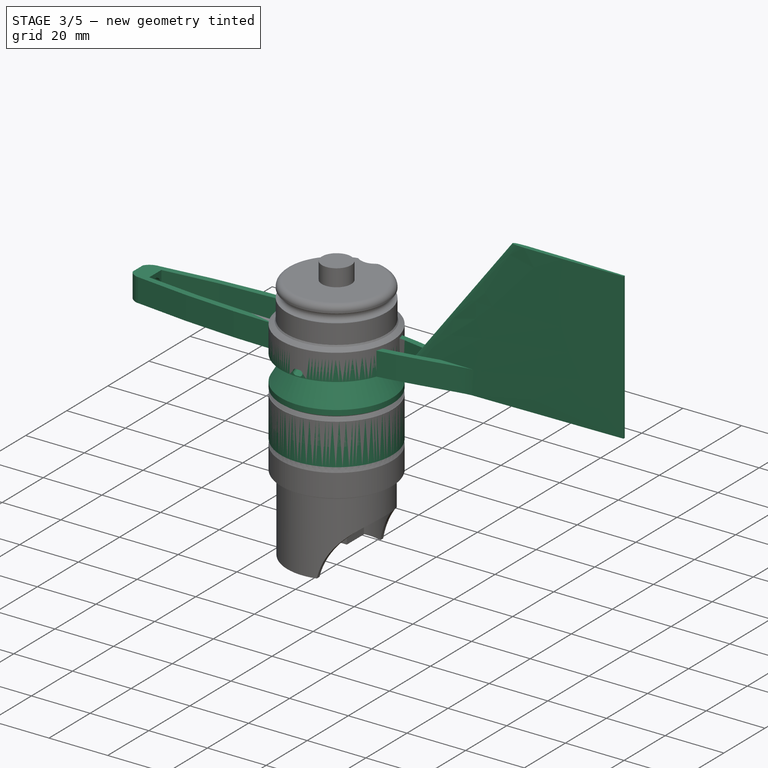
[diagram: stage 3 of 5 — iso view after this stage's code; geometry added in this stage tinted green]
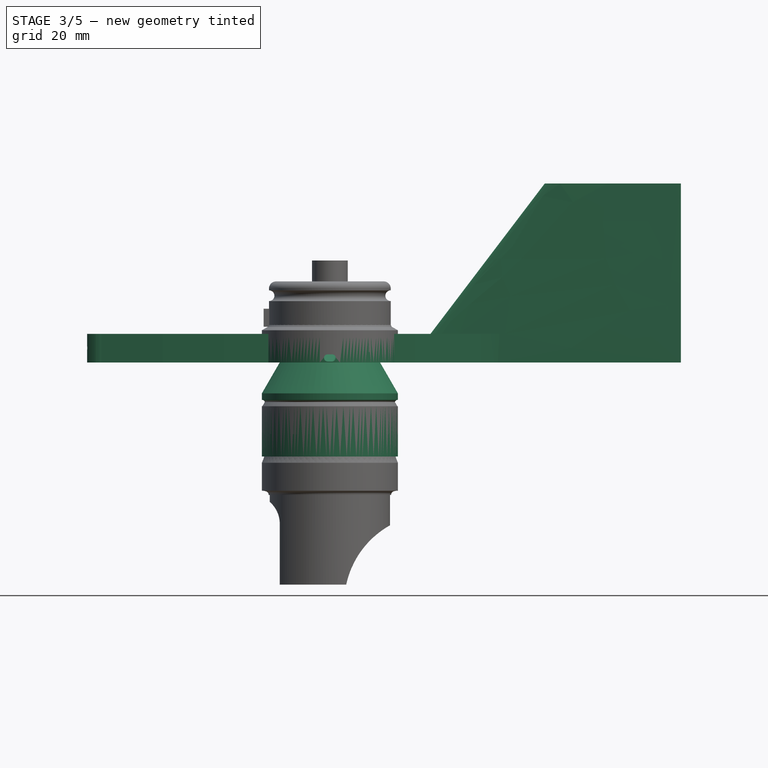
[diagram: stage 3 of 5 — front view after this stage's code; geometry added in this stage tinted green]
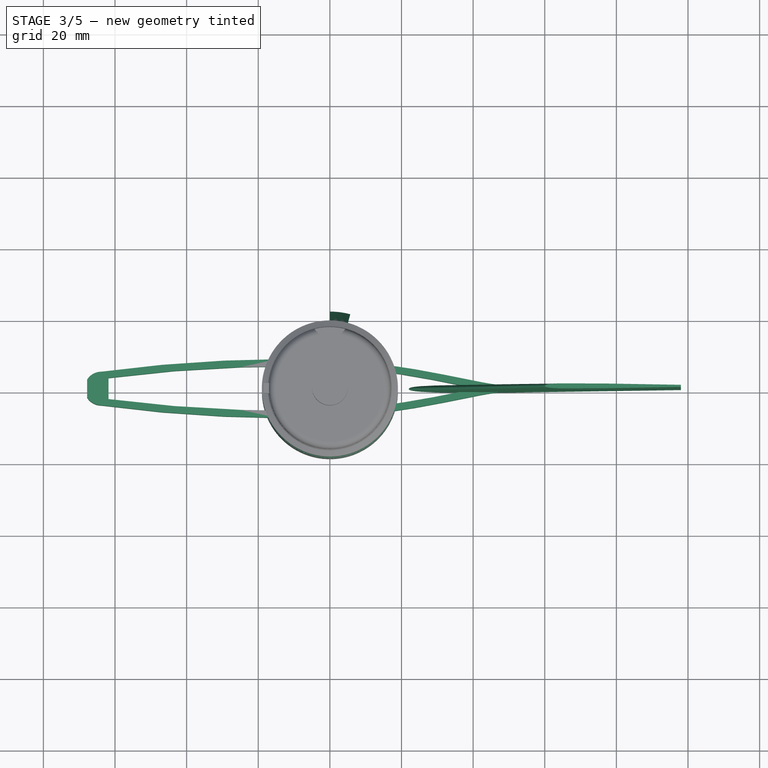
[diagram: stage 3 of 5 — top view after this stage's code; geometry added in this stage tinted green]
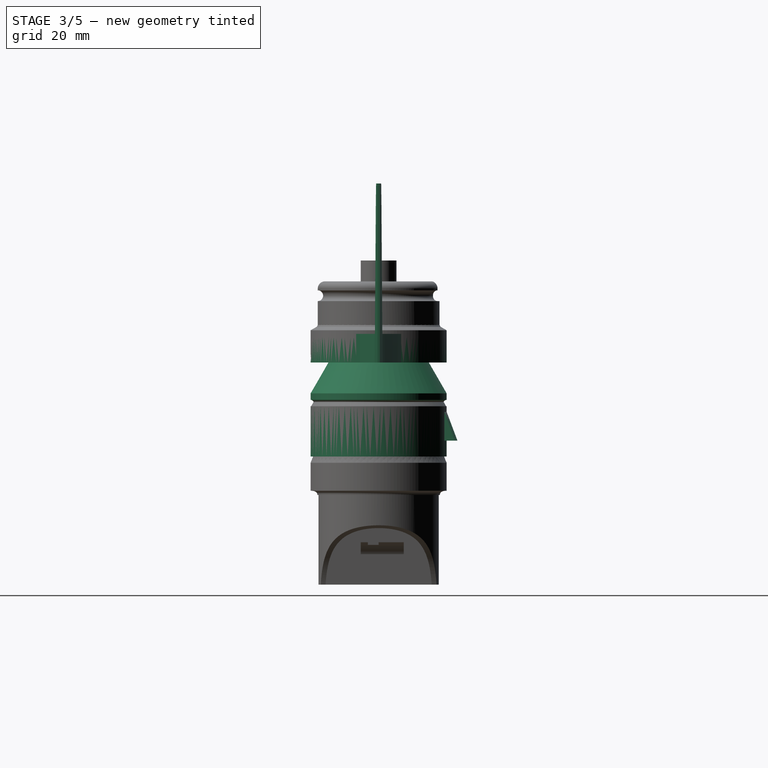
[diagram: stage 3 of 5 — right view after this stage's code; geometry added in this stage tinted green]
FEATURE [Sketcher::SketchObject] Sketch036
  ArcFitTolerance = 1e-06
  AttachmentSupport = -> [YZ_Plane011]
  ExternalTypes = [0]
  FullyConstrained = true
  MakeInternals = false
  MapMode = 5
  Placement = pos=(0,0,0) rot=(0.57735,0.57735,0.57735;2.0944rad)
  _ExternalGeoVersion = 0
  sketch-geometry (4):
    g0: LineSegment [constr] StartX=0 StartY=0 StartZ=0 EndX=19 EndY=-13.8 EndZ=0
    g1: LineSegment StartX=19 StartY=-13.8 StartZ=0 EndX=19 EndY=-21.8 EndZ=0
    g2: LineSegment StartX=19 StartY=-13.8 StartZ=0 EndX=22 EndY=-21.8 EndZ=0
    g3: LineSegment StartX=22 StartY=-21.8 StartZ=0 EndX=19 EndY=-21.8 EndZ=0
  constraints (11):
    c: Coincident(g0,g-1)
    c: DistanceX(g0,g0) = 19
    c: Coincident(g1,g0)
    c: Vertical(g1)
    c: Coincident(g2,g0)
    c: Coincident(g3,g2)
    c: Coincident(g3,g1)
    c: Horizontal(g3)
    c: DistanceY(g1,g1) = 8
    c: Distance(g3,g3) = 3
    c: DistanceY(g0,g-1) = 13.8
FEATURE [PartDesign::Plane] DatumPlane002
  AttachmentOffset = pos=(0,0,0) rot=(0,1,0;2.0944rad)
  AttachmentSupport = -> [YZ_Plane011]
  Length = 80.1353
  MapMode = 5
  Placement = pos=(0,0,0) rot=(-0.186157,0.694747,0.694747;3.50969rad)
  ResizeMode = 0
  Width = 63.0936
FEATURE [Sketcher::SketchObject] Sketch037
  ArcFitTolerance = 1e-06
  AttachmentSupport = -> [DatumPlane002]
  ExternalTypes = [0]
  FullyConstrained = true
  MakeInternals = false
  MapMode = 5
  Placement = pos=(0,0,0) rot=(-0.186157,0.694747,0.694747;3.50969rad)
  _ExternalGeoVersion = 0
  expr: Constraints[10] = Sketch036.Constraints[10]
  expr: Constraints[1] = Sketch036.Constraints[1]
  expr: Constraints[8] = Sketch036.Constraints[8]
  expr: Constraints[9] = Sketch036.Constraints[9]
  sketch-geometry (4):
    g0: LineSegment [constr] StartX=0 StartY=0 StartZ=0 EndX=19 EndY=-13.8 EndZ=0
    g1: LineSegment StartX=19 StartY=-13.8 StartZ=0 EndX=19 EndY=-21.8 EndZ=0
    g2: LineSegment StartX=19 StartY=-13.8 StartZ=0 EndX=22 EndY=-21.8 EndZ=0
    g3: LineSegment StartX=22 StartY=-21.8 StartZ=0 EndX=19 EndY=-21.8 EndZ=0
  constraints (11):
    c: Coincident(g0,g-1)
    c: DistanceX(g0,g0) = 19
    c: Coincident(g1,g0)
    c: Vertical(g1)
    c: Coincident(g2,g0)
    c: Coincident(g3,g2)
    c: Coincident(g3,g1)
    c: Horizontal(g3)
    c: DistanceY(g1,g1) = 8
    c: Distance(g3,g3) = 3
    c: DistanceY(g0,g-1) = 13.8
FEATURE [PartDesign::Plane] DatumPlane003
  AttachmentOffset = pos=(0,0,0) rot=(0,1,0;4.18879rad)
  AttachmentSupport = -> [YZ_Plane011]
  Length = 80.1353
  MapMode = 5
  Placement = pos=(0,0,0) rot=(-0.935113,0.250563,0.250563;4.64535rad)
  ResizeMode = 0
  Width = 63.0936
FEATURE [Sketcher::SketchObject] Sketch038
  ArcFitTolerance = 1e-06
  AttachmentSupport = -> [DatumPlane003]
  ExternalTypes = [0]
  FullyConstrained = true
  MakeInternals = false
  MapMode = 5
  Placement = pos=(0,0,0) rot=(0.935113,-0.250563,-0.250563;1.63783rad)
  _ExternalGeoVersion = 0
  expr: Constraints[10] = Sketch037.Constraints[10]
  expr: Constraints[1] = Sketch037.Constraints[1]
  expr: Constraints[8] = Sketch037.Constraints[8]
  expr: Constraints[9] = Sketch037.Constraints[9]
  sketch-geometry (4):
    g0: LineSegment [constr] StartX=0 StartY=0 StartZ=0 EndX=19 EndY=-13.8 EndZ=0
    g1: LineSegment StartX=19 StartY=-13.8 StartZ=0 EndX=19 EndY=-21.8 EndZ=0
    g2: LineSegment StartX=19 StartY=-13.8 StartZ=0 EndX=22 EndY=-21.8 EndZ=0
    g3: LineSegment StartX=22 StartY=-21.8 StartZ=0 EndX=19 EndY=-21.8 EndZ=0
  constraints (11):
    c: Coincident(g0,g-1)
    c: DistanceX(g0,g0) = 19
    c: Coincident(g1,g0)
    c: Vertical(g1)
    c: Coincident(g2,g0)
    c: Coincident(g3,g2)
    c: Coincident(g3,g1)
    c: Horizontal(g3)
    c: DistanceY(g1,g1) = 8
    c: Distance(g3,g3) = 3
    c: DistanceY(g0,g-1) = 13.8
FEATURE [Sketcher::SketchObject] Sketch031
  ArcFitTolerance = 0
  AttachmentSupport = -> [YZ_Plane011]
  ExternalTypes = [0]
  FullyConstrained = true
  MakeInternals = false
  MapMode = 5
  Placement = pos=(0,0,0) rot=(0.57735,0.57735,0.57735;2.0944rad)
  _ExternalGeoVersion = 0
  sketch-geometry (15):
    g0: LineSegment StartX=14.02 StartY=-8 StartZ=0 EndX=14.02 EndY=-18.5 EndZ=0
    g1: LineSegment StartX=7.3 StartY=0 StartZ=0 EndX=7.3 EndY=-7 EndZ=0
    g2: LineSegment StartX=14.02 StartY=-18.5 StartZ=0 EndX=18.5 EndY=-26.2596 EndZ=0
    g3: LineSegment StartX=18.5 StartY=-26.2596 StartZ=0 EndX=19 EndY=-26.2596 EndZ=0
    g4: LineSegment StartX=19 StartY=-8.62561 StartZ=0 EndX=14.02 EndY=0 EndZ=0
    g5: LineSegment StartX=14.02 StartY=0 StartZ=0 EndX=7.3 EndY=0 EndZ=0
    g6: LineSegment [constr] StartX=14.02 StartY=0 StartZ=0 EndX=14.02 EndY=-8 EndZ=0
    g7: LineSegment StartX=7.3 StartY=-7 StartZ=0 EndX=9 EndY=-7 EndZ=0
    g8: LineSegment StartX=9 StartY=-7 StartZ=0 EndX=9 EndY=-8 EndZ=0
    g9: LineSegment StartX=9 StartY=-8 StartZ=0 EndX=14.02 EndY=-8 EndZ=0
    g10: LineSegment StartX=19 StartY=-12.2256 StartZ=0 EndX=19 EndY=-26.2596 EndZ=0
    g11: ArcOfCircle CenterX=19 CenterY=-11.3256 CenterZ=0 NormalX=0 NormalY=0 NormalZ=1 AngleXU=0 Radius=0.9 StartAngle=1.5708 EndAngle=4.71239
    g12: LineSegment StartX=19 StartY=-8.62561 StartZ=0 EndX=19 EndY=-10.4256 EndZ=0
    g13: LineSegment [constr] StartX=19 StartY=-12.2256 StartZ=0 EndX=19 EndY=-11.3256 EndZ=0
    g14: LineSegment [constr] StartX=19 StartY=-11.3256 StartZ=0 EndX=19 EndY=-10.4256 EndZ=0
  constraints (43):
    c: Vertical(g0)
    c: Coincident(g9,g0)
    c: Vertical(g1)
    c: Distance(g7,g-2) = 7.3
    c: Coincident(g2,g0)
    c: DistanceY(g0,g0) = 10.5
    c: Coincident(g3,g2)
    c: Coincident(g3,g10)
    c: Horizontal(g3)
    c: DistanceX(g3,g3) = 0.5
    c: Coincident(g4,g5)
    c: Coincident(g1,g7)
    c: PointOnObject(g4,g-1)
    c: PointOnObject(g5,g-1)
    c: Coincident(g1,g5)
    c: Distance(g4,g-2) = 14.02
    c: Coincident(g6,g4)
    c: Coincident(g6,g0)
    c: Vertical(g6)
    c: Coincident(g7,g8)
    c: Horizontal(g7)
    c: Coincident(g8,g9)
    c: Horizontal(g9)
    c: Vertical(g8)
    c: Distance(g8,g8) = 1
    c: Distance(g8,g5) = 8
    c: Distance(g8,g-2) = 9
    c: Vertical(g10)
    c: Coincident(g10,g11)
    c: Coincident(g12,g4)
    c: Coincident(g12,g11)
    c: Vertical(g12)
    c: Radius(g11) = 0.9
    c: DistanceY(g12,g12) = 1.8
    c: Angle(g4,g12) = 2.61799
    c: Angle(g2,g10) = 2.61799
    c: Coincident(g13,g10)
    c: Coincident(g13,g11)
    c: Coincident(g14,g11)
    c: Coincident(g14,g11)
    c: Vertical(g14)
    c: Vertical(g13)
    c: Distance(g4,g-2) = 19
FEATURE [PartDesign::Revolution] Revolution010  label="Revolution-Main004"
  Angle = 360
  Angle2 = 60
  Axis = (0,0,1)
  Base = (0,0,0)
  FuseOrder = 1
  Placement = pos=(0,0,0) rot=(1,1,1;2.0944rad)
  Profile = -> Sketch031
  ReferenceAxis = -> Sketch031 [V_Axis]
  Reversed = true
  Suppressed = false
  Type = 0
FEATURE [PartDesign::Revolution] Revolution012  label="Revolution-Tenon-1"
  Angle = 15
  Angle2 = 5
  Axis = (0,0,1)
  Base = (0,0,0)
  BaseFeature = -> Revolution010
  FuseOrder = 1
  Placement = pos=(0,0,0) rot=(1,1,1;2.0944rad)
  Profile = -> Sketch036
  ReferenceAxis = -> Sketch036 [V_Axis]
  Refine = true
  Reversed = true
  Suppressed = false
  Type = 0
FEATURE [PartDesign::Body] Body015  label="Branch 3"
  AllowCompound = false
  Group = -> [Clone001]
  Origin = -> Origin015
  Placement = pos=(0,0,0) rot=(0,0,1;4.18879rad)
  Tip = -> Clone001
FEATURE [App::Part] Part004  label="5-cups"
  Group = -> [Body014,Body009,Body010,Body015]
  Origin = -> Origin022
  Placement = pos=(0,0,37) rot=(0,1,0;0rad)
FEATURE [PartDesign::Plane] DatumPlane009
  AttachmentOffset = pos=(0,0,50) rot=(0,0,1;0rad)
  AttachmentSupport = -> [XY_Plane017]
  Length = 183.989
  MapMode = 5
  Placement = pos=(0,0,50) rot=(0,0,1;0rad)
  ResizeMode = 0
  Width = 68.2088
FEATURE [Sketcher::SketchObject] Sketch039
  ArcFitTolerance = 1e-06
  AttachmentSupport = -> [XY_Plane017]
  ExternalTypes = [0]
  FullyConstrained = true
  MakeInternals = false
  MapMode = 5
  _ExternalGeoVersion = 0
  sketch-geometry (17):
    g0-g3: Circle [constr] x4 (B-spline internal-alignment scaffolding for g4; pole/knot coordinates omitted)
    g4: BSplineCurve PolesCount=4 KnotsCount=2 Degree=3 IsPeriodic=0
    g5: GeomPoint [constr] X=0 Y=-6 Z=0
    g6: GeomPoint [constr] X=49.44 Y=1.01 Z=0
    g7: Circle [constr] CenterX=0 CenterY=-6 CenterZ=0 NormalX=0 NormalY=0 NormalZ=1 AngleXU=0 Radius=1
    g8: Circle [constr] CenterX=-32.88 CenterY=-7 CenterZ=0 NormalX=0 NormalY=0 NormalZ=1 AngleXU=0 Radius=1
    g9: Circle [constr] CenterX=-64.88 CenterY=-2.53415 CenterZ=0 NormalX=0 NormalY=0 NormalZ=1 AngleXU=0 Radius=1
    g10: BSplineCurve PolesCount=3 KnotsCount=2 Degree=2 IsPeriodic=0
    g11: GeomPoint [constr] X=0 Y=-6 Z=0
    g12: GeomPoint [constr] X=-64.88 Y=-2.53415 Z=0
    g13: LineSegment [constr] StartX=0 StartY=-6 StartZ=0 EndX=49.44 EndY=-6 EndZ=0
    g14: LineSegment [constr] StartX=49.44 StartY=-6 StartZ=0 EndX=49.44 EndY=1.01 EndZ=0
    g15: LineSegment [constr] StartX=0 StartY=-6 StartZ=0 EndX=-64.88 EndY=-6 EndZ=0
    g16: LineSegment [constr] StartX=-64.88 StartY=-6 StartZ=0 EndX=-64.88 EndY=-2.53415 EndZ=0
  constraints (38):
    c: Weight(g0) = 1
    c: Equal(g0,g1)
    c: Equal(g0,g2)
    c: Equal(g0,g3)
    c: InternalAlignment(g0-g3 -> g4) x4
    c: InternalAlignment(g5,g4)
    c: InternalAlignment(g6,g4)
    c: DistanceX(g1,g4) = 24
    c: DistanceY(g1,g4) = 5.8
    c: DistanceX(g2,g4) = 7.20815
    c: Weight(g7) = 1
    c: Equal(g7,g8)
    c: Equal(g7,g9)
    c: InternalAlignment(g7,g10)
    c: InternalAlignment(g8,g10)
    c: InternalAlignment(g9,g10)
    c: InternalAlignment(g11,g10)
    c: InternalAlignment(g12,g10)
    c: Coincident(g7,g4)
    c: DistanceX(g10,g8) = 32
    c: DistanceY(g10,g8) = -4.46585
    c: DistanceX(g8,g10) = 32.88
    c: DistanceY(g10,g-1) = 6
    c: PointOnObject(g10,g-2)
    c: Coincident(g13,g10)
    c: Horizontal(g13)
    c: Coincident(g14,g13)
    c: Coincident(g14,g4)
    c: Vertical(g14)
    c: Coincident(g15,g4)
    c: Horizontal(g15)
    c: Distance(g8,g15) = 1
    c: Coincident(g16,g15)
    c: Coincident(g16,g10)
    c: Vertical(g16)
    c: Distance(g1,g13) = 1.21
    c: Distance(g1,g-2) = 25.44
    c: Distance(g2,g13) = 7.4
FEATURE [Sketcher::SketchObject] Sketch052
  ArcFitTolerance = 1e-06
  AttachmentSupport = -> [YZ_Plane017]
  ExternalTypes = [0]
  FullyConstrained = true
  MakeInternals = false
  MapMode = 5
  Placement = pos=(0,0,0) rot=(0.57735,0.57735,0.57735;2.0944rad)
  _ExternalGeoVersion = 0
  sketch-geometry (4):
    g0: LineSegment StartX=-6 StartY=8 StartZ=0 EndX=-8 EndY=8 EndZ=0
    g1: LineSegment StartX=-8 StartY=8 StartZ=0 EndX=-8 EndY=0 EndZ=0
    g2: LineSegment StartX=-8 StartY=0 StartZ=0 EndX=-6 EndY=0 EndZ=0
    g3: LineSegment StartX=-6 StartY=0 StartZ=0 EndX=-6 EndY=8 EndZ=0
  constraints (12):
    c: Coincident(g0,g1)
    c: Vertical(g1)
    c: Horizontal(g0)
    c: Distance(g0,g0) = 2
    c: DistanceY(g1,g1) = 8
    c: Coincident(g2,g1)
    c: PointOnObject(g2,g-1)
    c: Horizontal(g2)
    c: Coincident(g3,g2)
    c: Coincident(g3,g0)
    c: Vertical(g3)
    c: DistanceX(g2,g-1) = 6
FEATURE [PartDesign::AdditivePipe] AdditivePipe002  label="AdditivePipe-Beam"
  AuxiliaryCurvilinear = true
  AuxiliarySpineTangent = false
  Binormal = (0,0,0)
  Mode = 0
  Placement = pos=(0,0,0) rot=(1,1,1;2.0944rad)
  Profile = -> Sketch052
  Refine = true
  Spine = -> Sketch039
  SpineTangent = false
  Suppressed = false
  Transformation = 0
  Transition = 0
FEATURE [Sketcher::SketchObject] Sketch066
  ArcFitTolerance = 1e-06
  AttacherType = Attacher::AttachEngine3D
  AttachmentOffset = pos=(0,0,-19) rot=(0,0,1;0rad)
  AttachmentSupport = -> [XY_Plane020]
  ExternalTypes = [0]
  FullyConstrained = true
  MakeInternals = false
  MapMode = 5
  Placement = pos=(0,0,-19) rot=(0,0,1;0rad)
  _ExternalGeoVersion = 0
  sketch-geometry (3):
    g0: LineSegment StartX=-1.4 StartY=0 StartZ=0 EndX=-1.4 EndY=-15.3 EndZ=0
    g1: ArcOfCircle CenterX=-1.4 CenterY=0 CenterZ=0 NormalX=0 NormalY=0 NormalZ=1 AngleXU=0 Radius=15.3 StartAngle=1.5708 EndAngle=4.71239
    g2: LineSegment StartX=-1.4 StartY=15.3 StartZ=0 EndX=-1.4 EndY=0 EndZ=0
  constraints (9):
    c: Distance(g0) = 15.3
    c: Vertical(g0)
    c: PointOnObject(g0,g-1)
    c: DistanceX(g0,g-1) = 1.4
    c: Coincident(g1,g0)
    c: Coincident(g1,g0)
    c: Coincident(g2,g1)
    c: Coincident(g2,g0)
    c: Vertical(g2)
FEATURE [PartDesign::Mirrored] Mirrored  label="Mirrored-Twin beam"
  BaseFeature = -> AdditivePipe002
  MirrorPlane = -> XZ_Plane017
  Placement = pos=(0,0,0) rot=(1,1,1;2.0944rad)
  Refine = true
  Suppressed = false
  TransformMode = 1
FEATURE [PartDesign::AdditiveLoft] AdditiveLoft  label="AdditiveLoft-Sail"
  BaseFeature = -> Mirrored
  Closed = false
  Placement = pos=(0,0,0) rot=(1,1,1;2.0944rad)
  Profile = -> Sketch041
  Refine = true
  Ruled = false
  Sections = -> [Sketch042]
  Suppressed = false
FEATURE [PartDesign::Pad] Pad003  label="Pad-Counterweight holder"
  BaseFeature = -> AdditiveLoft
  Direction = (0,0,1)
  Length = 8
  Length2 = 10
  Placement = pos=(0,0,0) rot=(1,1,1;2.0944rad)
  Profile = -> Sketch053
  ReferenceAxis = -> Sketch053 [N_Axis]
  Refine = true
  SideType = 0
  Suppressed = false
  Type = 0
  Type2 = 0
FEATURE [PartDesign::Pocket] Pocket004  label="Pocket-Counterweight Slot"
  BaseFeature = -> Pad003
  Direction = (1,-2e-16,-2e-16)
  Length = 5
  Length2 = 10
  Placement = pos=(0,0,0) rot=(1,1,1;2.0944rad)
  Profile = -> Sketch061
  ReferenceAxis = -> Sketch061 [N_Axis]
  Reversed = true
  SideType = 1
  Suppressed = false
  Type = 0
  Type2 = 0
FEATURE [PartDesign::Body] Body016  label="1-vane"
  AllowCompound = false
  Group = -> [Sketch052,Sketch039,AdditivePipe002,Mirrored,Sketch041,DatumPlane009,Sketch042,AdditiveLoft,Sketch053,Pad003,Sketch061,Pocket004,Sketch081,Pad008,Sketch082,Pocket012,Sketch092,Pocket017]
  Origin = -> Origin017
  Placement = pos=(0,0,105) rot=(0,0,1;0rad)
  Tip = -> Pocket017
FEATURE [Sketcher::SketchObject] Sketch
  ArcFitTolerance = 1e-06
  AttachmentSupport = -> [YZ_Plane020]
  ExternalTypes = [0]
  FullyConstrained = true
  MakeInternals = false
  MapMode = 5
  Placement = pos=(0,0,0) rot=(0.57735,0.57735,0.57735;2.0944rad)
  _ExternalGeoVersion = 0
  sketch-geometry (10):
    g0: LineSegment StartX=0 StartY=-12.5 StartZ=0 EndX=-3 EndY=-12.5 EndZ=0
    g1: LineSegment StartX=-3 StartY=-12.5 StartZ=0 EndX=-3 EndY=-62.5 EndZ=0
    g2: LineSegment StartX=-3 StartY=-62.5 StartZ=0 EndX=0 EndY=-62.5 EndZ=0
    g3: LineSegment StartX=0 StartY=-62.5 StartZ=0 EndX=0 EndY=-12.5 EndZ=0
    g4: GeomPoint [constr] X=-1.5 Y=-37.5 Z=0
    g5: LineSegment StartX=10.5 StartY=-17 StartZ=0 EndX=10.5 EndY=-47 EndZ=0
    g6: LineSegment StartX=10.5 StartY=-47 StartZ=0 EndX=13.5 EndY=-47 EndZ=0
    g7: LineSegment StartX=13.5 StartY=-47 StartZ=0 EndX=13.5 EndY=-17 EndZ=0
    g8: LineSegment StartX=13.5 StartY=-17 StartZ=0 EndX=10.5 EndY=-17 EndZ=0
    g9: GeomPoint [constr] X=12 Y=-32 Z=0
  constraints (26):
    c: Coincident(g0,g1)
    c: Coincident(g1,g2)
    c: Coincident(g2,g3)
    c: Coincident(g3,g0)
    c: Horizontal(g0)
    c: Horizontal(g2)
    c: Vertical(g1)
    c: Vertical(g3)
    c: Symmetric(g2,g0,g4)
    c: DistanceY(g1,g1) = 50
    c: Distance(g0,g0) = 3
    c: Distance(g4,g-1) = 37.5
    c: Distance(g4,g-2) = 1.5
    c: Coincident(g5,g6)
    c: Coincident(g6,g7)
    c: Coincident(g7,g8)
    c: Coincident(g8,g5)
    c: Vertical(g5)
    c: Vertical(g7)
    c: Horizontal(g6)
    c: Horizontal(g8)
    c: Symmetric(g7,g5,g9)
    c: Distance(g8,g8) = 3
    c: DistanceY(g7,g7) = 30
    c: Distance(g9,g-1) = 32
    c: Distance(g9,g-2) = 12
FEATURE [Sketcher::SketchObject] Sketch040
  ArcFitTolerance = 0
  AttachmentSupport = -> [YZ_Plane018]
  ExternalTypes = [0]
  FullyConstrained = true
  MakeInternals = false
  MapMode = 5
  Placement = pos=(0,0,0) rot=(0.57735,0.57735,0.57735;2.0944rad)
  _ExternalGeoVersion = 0
  sketch-geometry (15):
    g0: LineSegment StartX=14.52 StartY=14.8 StartZ=0 EndX=19 EndY=7.04041 EndZ=0
    g1: LineSegment StartX=5.05 StartY=0 StartZ=0 EndX=19 EndY=0 EndZ=0
    g2: LineSegment StartX=19 StartY=7.04041 StartZ=0 EndX=19 EndY=0 EndZ=0
    g3: LineSegment StartX=5.05 StartY=0 StartZ=0 EndX=5.05 EndY=4 EndZ=0
    g4: LineSegment StartX=12 StartY=6.5 StartZ=0 EndX=12 EndY=7.3 EndZ=0
    g5: LineSegment StartX=12 StartY=7.3 StartZ=0 EndX=14.02 EndY=7.3 EndZ=0
    g6: LineSegment StartX=14.52 StartY=14.8 StartZ=0 EndX=14.02 EndY=14.8 EndZ=0
    g7: LineSegment StartX=14.02 StartY=14.8 StartZ=0 EndX=14.02 EndY=7.3 EndZ=0
    g8: LineSegment StartX=9.5 StartY=6.5 StartZ=0 EndX=12 EndY=6.5 EndZ=0
    g9: LineSegment StartX=8 StartY=4 StartZ=0 EndX=8 EndY=5 EndZ=0
    g10: LineSegment [constr] StartX=5.05 StartY=4 StartZ=0 EndX=8 EndY=4 EndZ=0
    g11: LineSegment StartX=5.05 StartY=5.5 StartZ=0 EndX=8 EndY=4 EndZ=0
    g12: LineSegment StartX=5.05 StartY=4 StartZ=0 EndX=5.05 EndY=5.5 EndZ=0
    g13: ArcOfCircle CenterX=9.5 CenterY=5 CenterZ=0 NormalX=0 NormalY=0 NormalZ=1 AngleXU=0 Radius=1.5 StartAngle=1.5708 EndAngle=3.14159
    g14: GeomPoint [constr] X=8 Y=6.5 Z=0
  constraints (42):
    c: Distance(g1,g-2) = 5.05
    c: Horizontal(g1)
    c: Coincident(g2,g0)
    c: Coincident(g2,g1)
    c: Vertical(g2)
    c: Angle(g2,g0) = 0.523599
    c: Vertical(g3)
    c: Coincident(g3,g1)
    c: PointOnObject(g1,g-1)
    c: Coincident(g4,g8)
    c: Vertical(g4)
    c: Coincident(g5,g4)
    c: Horizontal(g5)
    c: DistanceY(g5,g0) = 7.5
    c: Distance(g1,g-2) = 19
    c: Coincident(g6,g0)
    c: Horizontal(g6)
    c: Distance(g6,g6) = 0.5
    c: Coincident(g7,g6)
    c: Coincident(g7,g5)
    c: Vertical(g7)
    c: Distance(g6,g-2) = 14.02
    c: Horizontal(g8)
    c: Vertical(g9)
    c: Distance(g14,g-2) = 8
    c: Distance(g14,g9) = 2.5
    c: DistanceY(g4,g4) = 0.8
    c: Coincident(g10,g3)
    c: Horizontal(g10)
    c: Coincident(g10,g9)
    c: DistanceY(g1,g14) = 6.5
    c: Distance(g4,g-2) = 12
    c: Coincident(g11,g9)
    c: Coincident(g12,g3)
    c: Coincident(g12,g11)
    c: Vertical(g12)
    c: DistanceY(g12,g12) = 1.5
    c: PointOnObject(g14,g8)
    c: PointOnObject(g14,g9)
    c: Tangent(g8,g13) = 1.5708
    c: Tangent(g9,g13) = 1.5708
    c: Radius(g13) = 1.5
FEATURE [PartDesign::Revolution] Revolution  label="Revolution-Main002"
  Angle = 360
  Angle2 = 60
  Axis = (0,0,1)
  Base = (0,0,0)
  FuseOrder = 1
  Placement = pos=(0,0,0) rot=(1,1,1;2.0944rad)
  Profile = -> Sketch040
  ReferenceAxis = -> Sketch040 [V_Axis]
  Refine = true
  Reversed = true
  Suppressed = false
  Type = 0
FEATURE [Sketcher::SketchObject] Sketch172
  ArcFitTolerance = 1e-06
  AttachmentOffset = pos=(0,4,6.3) rot=(0,0,1;0rad)
  AttachmentSupport = -> [XZ_Plane018]
  ExternalTypes = [0]
  FullyConstrained = true
  MakeInternals = false
  MapMode = 5
  Placement = pos=(0,-6.3,4) rot=(1,0,0;1.5708rad)
  _ExternalGeoVersion = 0
  sketch-geometry (7):
    g0: ArcOfCircle CenterX=-2.5 CenterY=0.8 CenterZ=0 NormalX=0 NormalY=0 NormalZ=1 AngleXU=0 Radius=0.8 StartAngle=1.5708 EndAngle=4.71239
    g1: ArcOfCircle CenterX=2.5 CenterY=0.8 CenterZ=0 NormalX=0 NormalY=0 NormalZ=1 AngleXU=0 Radius=0.8 StartAngle=4.71239 EndAngle=7.85398
    g2: LineSegment StartX=-2.5 StartY=1.6 StartZ=0 EndX=2.5 EndY=1.6 EndZ=0
    g3: LineSegment StartX=-2.5 StartY=6.36e-14 StartZ=0 EndX=0 EndY=0 EndZ=0
    g4: LineSegment StartX=0 StartY=0 StartZ=0 EndX=2.5 EndY=6.2e-14 EndZ=0
    g5: LineSegment [constr] StartX=-2.5 StartY=6.36e-14 StartZ=0 EndX=-2.5 EndY=1.6 EndZ=0
    g6: LineSegment [constr] StartX=2.5 StartY=6.2e-14 StartZ=0 EndX=2.5 EndY=1.6 EndZ=0
  constraints (18):
    c: Tangent(g0,g2) = 1.5708
    c: Coincident(g0,g3) = -1.5708
    c: Tangent(g1,g2) = 1.5708
    c: Coincident(g1,g4) = -1.5708
    c: Equal(g0,g1)
    c: PointOnObject(g0,g-1)
    c: PointOnObject(g1,g-1)
    c: Coincident(g3,g4)
    c: Coincident(g3,g-1)
    c: Radius(g0) = 0.8
    c: Equal(g4,g3)
    c: DistanceX(g2,g2) = 5
    c: Coincident(g5,g0)
    c: Coincident(g5,g0)
    c: Vertical(g5)
    c: Coincident(g6,g1)
    c: Coincident(g6,g1)
    c: Vertical(g6)
FEATURE [Sketcher::SketchObject] Sketch173
  ArcFitTolerance = 1e-06
  AttachmentOffset = pos=(0,0,20) rot=(1,0,1;0rad)
  AttachmentSupport = -> [XZ_Plane018]
  ExternalTypes = [0]
  FullyConstrained = true
  MakeInternals = false
  MapMode = 5
  Placement = pos=(0,-20,4.4e-15) rot=(1,0,0;1.5708rad)
  _ExternalGeoVersion = 0
  sketch-geometry (6):
    g0: ArcOfCircle CenterX=-0.500004 CenterY=1 CenterZ=0 NormalX=0 NormalY=0 NormalZ=1 AngleXU=0 Radius=1 StartAngle=1.5708 EndAngle=4.71239
    g1: ArcOfCircle CenterX=0.499996 CenterY=1 CenterZ=0 NormalX=0 NormalY=0 NormalZ=1 AngleXU=0 Radius=1 StartAngle=4.7124 EndAngle=7.85398
    g2: LineSegment StartX=-0.500004 StartY=2 StartZ=0 EndX=0.499996 EndY=2 EndZ=0
    g3: LineSegment StartX=-0.500004 StartY=0 StartZ=0 EndX=0 EndY=0 EndZ=0
    g4: LineSegment StartX=0 StartY=0 StartZ=0 EndX=0.500004 EndY=2.94925e-11 EndZ=0
    g5: LineSegment [constr] StartX=-0.500004 StartY=2 StartZ=0 EndX=-0.500004 EndY=0 EndZ=0
  constraints (16):
    c: Tangent(g0,g2) = 1.5708
    c: Coincident(g0,g3) = -1.5708
    c: Tangent(g1,g2) = 1.5708
    c: Coincident(g1,g4) = -1.5708
    c: Equal(g0,g1)
    c: Horizontal(g2)
    c: PointOnObject(g0,g-1)
    c: Coincident(g3,g4)
    c: Coincident(g3,g-1)
    c: Equal(g3,g4)
    c: Radius(g0) = 1
    c: DistanceX(g2,g2) = 1
    c: PointOnObject(g1,g-1)
    c: Coincident(g5,g0)
    c: Coincident(g5,g0)
    c: Vertical(g5)
FEATURE [PartDesign::SubtractiveLoft] SubtractiveLoft  label="SubtractiveLoft-Drain"
  BaseFeature = -> Revolution
  Closed = false
  Placement = pos=(0,0,0) rot=(1,1,1;2.0944rad)
  Profile = -> Sketch172
  Ruled = false
  Sections = -> [Sketch173]
  Suppressed = false
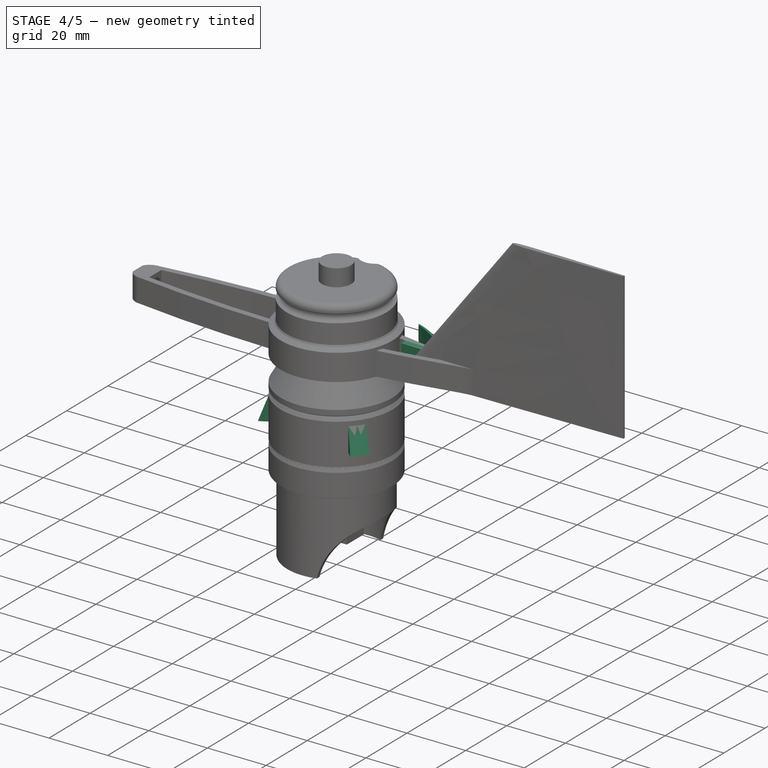
[diagram: stage 4 of 5 — iso view after this stage's code; geometry added in this stage tinted green]
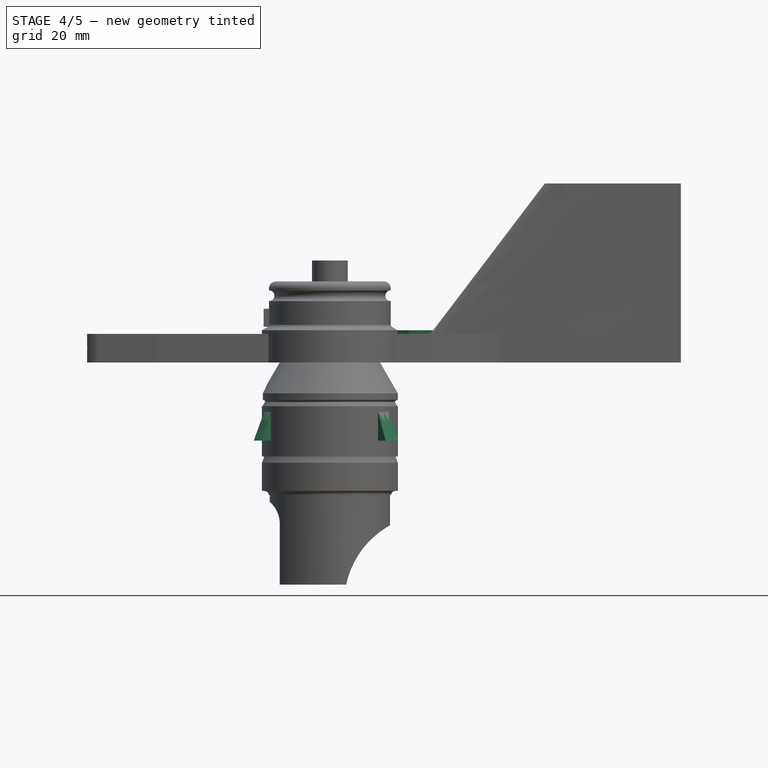
[diagram: stage 4 of 5 — front view after this stage's code; geometry added in this stage tinted green]
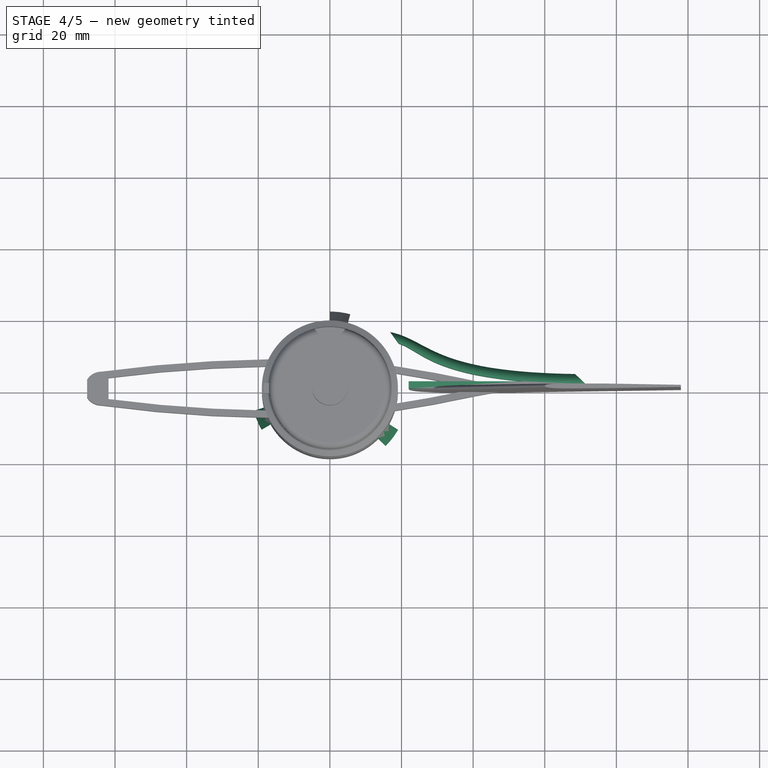
[diagram: stage 4 of 5 — top view after this stage's code; geometry added in this stage tinted green]
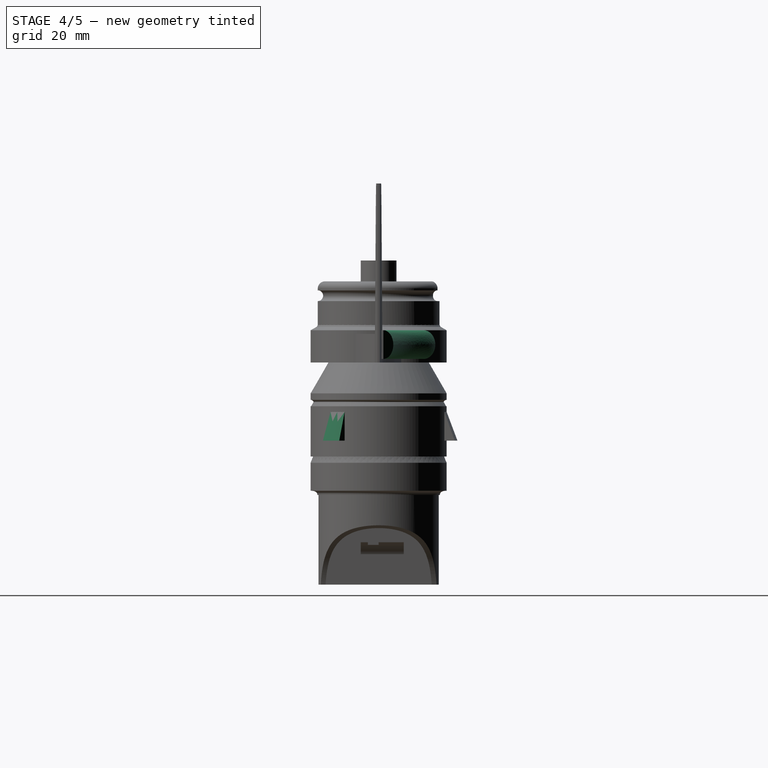
[diagram: stage 4 of 5 — right view after this stage's code; geometry added in this stage tinted green]
FEATURE [PartDesign::Revolution] Revolution013  label="Revolution-Tenon-2"
  Angle = 15
  Angle2 = 5
  Axis = (-1e-16,3e-16,1)
  Base = (0,0,0)
  BaseFeature = -> Revolution012
  FuseOrder = 1
  Placement = pos=(0,0,0) rot=(1,1,1;2.0944rad)
  Profile = -> Sketch037
  ReferenceAxis = -> Sketch037 [V_Axis]
  Refine = true
  Reversed = true
  Suppressed = false
  Type = 0
FEATURE [PartDesign::Revolution] Revolution014  label="Revolution-Tenon-3"
  Angle = 15
  Angle2 = 5
  Axis = (1e-16,2e-16,1)
  Base = (0,0,0)
  BaseFeature = -> Revolution013
  FuseOrder = 1
  Placement = pos=(0,0,0) rot=(1,1,1;2.0944rad)
  Profile = -> Sketch038
  ReferenceAxis = -> Sketch038 [V_Axis]
  Refine = true
  Reversed = true
  Suppressed = false
  Type = 0
FEATURE [PartDesign::Body] Body014  label="axle"
  AllowCompound = false
  Group = -> [Sketch027,Revolution008,Sketch028,Groove,DatumPlane004,Sketch029,Groove001,DatumPlane005,Sketch030,Sketch047,Groove002]
  Origin = -> Origin012
  Tip = -> Groove002
FEATURE [Sketcher::SketchObject] Sketch033
  ArcFitTolerance = 1e-06
  AttachmentSupport = -> [XY_Plane013]
  ExternalTypes = [0]
  FullyConstrained = true
  MakeInternals = false
  MapMode = 5
  _ExternalGeoVersion = 0
  sketch-geometry (8):
    g0: LineSegment [constr] StartX=0 StartY=0 StartZ=0 EndX=25 EndY=0 EndZ=0
    g1-g4: Circle [constr] x4 (B-spline internal-alignment scaffolding for g5; pole/knot coordinates omitted)
    g5: BSplineCurve PolesCount=4 KnotsCount=2 Degree=3 IsPeriodic=0
    g6: GeomPoint [constr] X=16.5 Y=16.3017 Z=0
    g7: GeomPoint [constr] X=68 Y=4.5 Z=0
  constraints (18):
    c: Distance(g0) = 25
    c: Coincident(g0,g-1)
    c: PointOnObject(g0,g-1)
    c: DistanceX(g1) = 16.5
    c: DistanceY(g1) = 16.3017
    c: Weight(g1) = 1
    c: Equal(g1,g2)
    c: Equal(g1,g3)
    c: Equal(g1,g4)
    c: InternalAlignment(g1-g4 -> g5) x4
    c: InternalAlignment(g6,g5)
    c: InternalAlignment(g7,g5)
    c: DistanceY(g-1,g3) = 5.18
    c: DistanceX(g-1,g3) = 27.98
    c: DistanceX(g5) = 68
    c: DistanceY(g5) = 4.5
    c: DistanceY(g2) = 13.8921
    c: DistanceX(g2) = 28.39
FEATURE [Sketcher::SketchObject] Sketch034
  ArcFitTolerance = 1e-06
  AttachmentSupport = -> [DatumPlane006]
  ExternalTypes = [0]
  FullyConstrained = true
  MakeInternals = false
  MapMode = 5
  Placement = pos=(28,0,5) rot=(0.377964,0.654654,0.654654;2.41886rad)
  _ExternalGeoVersion = 0
  sketch-geometry (3):
    g0: LineSegment [constr] StartX=0 StartY=4 StartZ=0 EndX=13.5 EndY=4 EndZ=0
    g1: LineSegment StartX=13.5 StartY=4 StartZ=0 EndX=13.5 EndY=-4 EndZ=0
    g2: ArcOfCircle CenterX=13.5 CenterY=0 CenterZ=0 NormalX=0 NormalY=0 NormalZ=1 AngleXU=0 Radius=4 StartAngle=4.71239 EndAngle=7.85398
  constraints (10):
    c: DistanceX(g0,g0) = 13.5
    c: Coincident(g1,g0)
    c: Vertical(g1)
    c: DistanceY(g1,g1) = 8
    c: Radius(g2) = 4
    c: Coincident(g2,g0)
    c: Coincident(g2,g1)
    c: PointOnObject(g2,g-1)
    c: PointOnObject(g0,g-2)
    c: Horizontal(g0)
FEATURE [PartDesign::AdditivePipe] AdditivePipe
  AuxiliaryCurvilinear = true
  AuxiliarySpineTangent = false
  Binormal = (0,0,0)
  Mode = 0
  Placement = pos=(28,0,5) rot=(0.377964,0.654654,0.654654;2.41886rad)
  Profile = -> Sketch034
  Refine = true
  Spine = -> Sketch033
  SpineTangent = false
  Suppressed = false
  Transformation = 0
  Transition = 0
FEATURE [Sketcher::SketchObject] Sketch048
  ArcFitTolerance = 1e-06
  AttachmentSupport = -> [DatumPlane007]
  ExternalTypes = [0]
  FullyConstrained = true
  MakeInternals = false
  MapMode = 5
  Placement = pos=(24,0,0) rot=(0.57735,0.57735,0.57735;2.0944rad)
  _ExternalGeoVersion = 0
  sketch-geometry (4):
    g0: LineSegment StartX=0 StartY=1 StartZ=0 EndX=2 EndY=1 EndZ=0
    g1: LineSegment StartX=2 StartY=1 StartZ=0 EndX=2 EndY=9 EndZ=0
    g2: LineSegment StartX=2 StartY=9 StartZ=0 EndX=0 EndY=9 EndZ=0
    g3: LineSegment StartX=0 StartY=9 StartZ=0 EndX=0 EndY=1 EndZ=0
  constraints (12):
    c: Coincident(g0,g1)
    c: Coincident(g1,g2)
    c: Coincident(g2,g3)
    c: Coincident(g3,g0)
    c: Horizontal(g0)
    c: Horizontal(g2)
    c: Vertical(g1)
    c: Vertical(g3)
    c: Distance(g1,g3) = 2
    c: Distance(g0,g2) = 8
    c: PointOnObject(g0,g-2)
    c: Distance(g0,g-1) = 1
FEATURE [Sketcher::SketchObject] Sketch049
  ArcFitTolerance = 1e-06
  AttachmentSupport = -> [XY_Plane013]
  ExternalTypes = [0]
  FullyConstrained = true
  MakeInternals = false
  MapMode = 5
  _ExternalGeoVersion = 0
  sketch-geometry (1):
    g0: LineSegment StartX=22 StartY=0 StartZ=0 EndX=67 EndY=0 EndZ=0
  constraints (4):
    c: Distance(g0) = 45
    c: PointOnObject(g0,g-1)
    c: PointOnObject(g0,g-1)
    c: DistanceX(g-1,g0) = 22
FEATURE [PartDesign::AdditivePipe] AdditivePipe001
  AuxiliaryCurvilinear = true
  AuxiliarySpineTangent = false
  BaseFeature = -> AdditivePipe
  Binormal = (0,0,0)
  Mode = 0
  Placement = pos=(28,0,5) rot=(0.377964,0.654654,0.654654;2.41886rad)
  Profile = -> Sketch048
  Refine = true
  Spine = -> Sketch049
  SpineTangent = false
  Suppressed = false
  Transformation = 0
  Transition = 0
FEATURE [Sketcher::SketchObject] Sketch041
  ArcFitTolerance = 1e-06
  AttachmentSupport = -> [XY_Plane017]
  ExternalTypes = [0]
  FullyConstrained = true
  MakeInternals = false
  MapMode = 5
  _ExternalGeoVersion = 0
  sketch-geometry (22):
    g0: LineSegment [constr] StartX=0 StartY=0 StartZ=0 EndX=22 EndY=0 EndZ=0
    g1-g4: Circle [constr] x4 (B-spline internal-alignment scaffolding for g5; pole/knot coordinates omitted)
    g5: BSplineCurve PolesCount=4 KnotsCount=2 Degree=3 IsPeriodic=0
    g6: GeomPoint [constr] X=22 Y=0 Z=0
    g7: GeomPoint [constr] X=98 Y=0.3 Z=0
    g8: LineSegment [constr] StartX=22 StartY=0 StartZ=0 EndX=22 EndY=1.3 EndZ=0
    g9: LineSegment StartX=98 StartY=0.3 StartZ=0 EndX=98 EndY=0 EndZ=0
    g10: BSplineCurve PolesCount=4 KnotsCount=2 Degree=3 IsPeriodic=0
    g11-g14: Circle [constr] x4 (B-spline internal-alignment scaffolding for g10; pole/knot coordinates omitted)
    g15: GeomPoint [constr] X=22 Y=0 Z=0
    g16: GeomPoint [constr] X=98 Y=-0.3 Z=0
    g17: LineSegment [constr] StartX=36 StartY=1.5 StartZ=0 EndX=36 EndY=0 EndZ=0
    g18: LineSegment [constr] StartX=36 StartY=0 StartZ=0 EndX=36 EndY=-1.5 EndZ=0
    g19: LineSegment StartX=98 StartY=0 StartZ=0 EndX=98 EndY=-0.3 EndZ=0
    g20: LineSegment [constr] StartX=22 StartY=1.3 StartZ=0 EndX=22 EndY=0 EndZ=0
    g21: LineSegment [constr] StartX=22 StartY=0 StartZ=0 EndX=22 EndY=-1.3 EndZ=0
  constraints (45):
    c: Coincident(g0,g-1)
    c: PointOnObject(g0,g-1)
    c: Distance(g0,g-2) = 22
    c: Weight(g1) = 1
    c: Equal(g1,g2)
    c: Equal(g1,g3)
    c: Equal(g1,g4)
    c: InternalAlignment(g1-g4 -> g5) x4
    c: InternalAlignment(g6,g5)
    c: InternalAlignment(g7,g5)
    c: Coincident(g1,g0)
    c: Coincident(g8,g5)
    c: Coincident(g8,g2)
    c: Vertical(g8)
    c: DistanceY(g8,g8) = 1.3
    c: DistanceX(g3) = 36
    c: DistanceY(g3) = 1.5
    c: Coincident(g9,g5)
    c: PointOnObject(g9,g-1)
    c: Vertical(g9)
    c: DistanceY(g9,g9) = 0.3
    c: Weight(g11) = 1
    c: Equal(g11,g12)
    c: Equal(g11,g13)
    c: Equal(g11,g14)
    c: InternalAlignment(g11-g16 -> g10) x6
    c: Coincident(g17,g3)
    c: PointOnObject(g17,g-1)
    c: Vertical(g17)
    c: Coincident(g18,g17)
    c: Coincident(g18,g13)
    c: Vertical(g18)
    c: Equal(g17,g18)
    c: Coincident(g19,g9)
    c: Coincident(g19,g10)
    c: Vertical(g19)
    c: Equal(g19,g9)
    c: Coincident(g20,g2)
    c: Coincident(g20,g10)
    c: Coincident(g21,g0)
    c: Coincident(g21,g12)
    c: Vertical(g21)
    c: Equal(g21,g8)
    c: DistanceX(g-1,g9) = 98
    c: Coincident(g10,g0)
FEATURE [Sketcher::SketchObject] Sketch042
  ArcFitTolerance = 1e-06
  AttachmentSupport = -> [DatumPlane009]
  ExternalTypes = [0]
  FullyConstrained = true
  MakeInternals = false
  MapMode = 5
  Placement = pos=(0,0,50) rot=(0,0,1;0rad)
  _ExternalGeoVersion = 0
  expr: Constraints[16] = Sketch041.Constraints[17]
  expr: Constraints[22] = Sketch041.Constraints[23]
  expr: Constraints[23] = Sketch041.Constraints[24]
  expr: Constraints[2] = Sketch041.Constraints[3]
  expr: Constraints[50] = Sketch041.Constraints[51]
  sketch-geometry (22):
    g0: LineSegment [constr] StartX=0 StartY=0 StartZ=0 EndX=60 EndY=0 EndZ=0
    g1-g4: Circle [constr] x4 (B-spline internal-alignment scaffolding for g5; pole/knot coordinates omitted)
    g5: BSplineCurve PolesCount=4 KnotsCount=2 Degree=3 IsPeriodic=0
    g6: GeomPoint [constr] X=60 Y=0 Z=0
    g7: GeomPoint [constr] X=98 Y=0.3 Z=0
    g8: LineSegment [constr] StartX=60 StartY=0 StartZ=0 EndX=60 EndY=1.3 EndZ=0
    g9: LineSegment StartX=98 StartY=0.3 StartZ=0 EndX=98 EndY=0 EndZ=0
    g10: BSplineCurve PolesCount=4 KnotsCount=2 Degree=3 IsPeriodic=0
    g11-g14: Circle [constr] x4 (B-spline internal-alignment scaffolding for g10; pole/knot coordinates omitted)
    g15: GeomPoint [constr] X=60 Y=0 Z=0
    g16: GeomPoint [constr] X=98 Y=-0.3 Z=0
    g17: LineSegment [constr] StartX=75 StartY=0.6 StartZ=0 EndX=75 EndY=0 EndZ=0
    g18: LineSegment [constr] StartX=75 StartY=0 StartZ=0 EndX=75 EndY=-0.6 EndZ=0
    g19: LineSegment StartX=98 StartY=0 StartZ=0 EndX=98 EndY=-0.3 EndZ=0
    g20: LineSegment [constr] StartX=60 StartY=1.3 StartZ=0 EndX=60 EndY=0 EndZ=0
    g21: LineSegment [constr] StartX=60 StartY=0 StartZ=0 EndX=60 EndY=-1.3 EndZ=0
  constraints (45):
    c: Coincident(g0,g-1)
    c: PointOnObject(g0,g-1)
    c: Weight(g1) = 1
    c: Equal(g1,g2)
    c: Equal(g1,g3)
    c: Equal(g1,g4)
    c: InternalAlignment(g1-g4 -> g5) x4
    c: InternalAlignment(g6,g5)
    c: InternalAlignment(g7,g5)
    c: Coincident(g1,g0)
    c: Coincident(g8,g5)
    c: Coincident(g8,g2)
    c: Vertical(g8)
    c: DistanceY(g8,g8) = 1.3
    c: DistanceX(g3) = 75
    c: DistanceY(g3) = 0.6
    c: Coincident(g9,g5)
    c: PointOnObject(g9,g-1)
    c: Vertical(g9)
    c: DistanceY(g9,g9) = 0.3
    c: Weight(g11) = 1
    c: Equal(g11,g12)
    c: Equal(g11,g13)
    c: Equal(g11,g14)
    c: InternalAlignment(g11-g16 -> g10) x6
    c: Coincident(g17,g3)
    c: PointOnObject(g17,g-1)
    c: Vertical(g17)
    c: Coincident(g18,g17)
    c: Coincident(g18,g13)
    c: Vertical(g18)
    c: Equal(g17,g18)
    c: Coincident(g19,g9)
    c: Coincident(g19,g10)
    c: Vertical(g19)
    c: Equal(g19,g9)
    c: Coincident(g20,g2)
    c: Coincident(g20,g10)
    c: Coincident(g21,g0)
    c: Coincident(g21,g12)
    c: Vertical(g21)
    c: Equal(g21,g8)
    c: DistanceX(g-1,g9) = 98
    c: Coincident(g10,g0)
    c: Distance(g0,g-2) = 60
FEATURE [Sketcher::SketchObject] Sketch053
  ArcFitTolerance = 1e-06
  AttachmentSupport = -> [XY_Plane017]
  ExternalTypes = [0]
  FullyConstrained = true
  MakeInternals = false
  MapMode = 5
  _ExternalGeoVersion = 0
  sketch-geometry (10):
    g0: LineSegment [constr] StartX=0 StartY=0 StartZ=0 EndX=-63.8 EndY=0 EndZ=0
    g1: LineSegment StartX=-67.7799 StartY=0 StartZ=0 EndX=-67.7799 EndY=2.5 EndZ=0
    g2: LineSegment StartX=-67.7799 StartY=0 StartZ=0 EndX=-67.7799 EndY=-2.5 EndZ=0
    g3: LineSegment [constr] StartX=-63.8 StartY=0 StartZ=0 EndX=-63.8 EndY=4.7 EndZ=0
    g4: LineSegment [constr] StartX=-63.8 StartY=0 StartZ=0 EndX=-63.8 EndY=-4.7 EndZ=0
    g5: ArcOfCircle CenterX=-63.8 CenterY=0 CenterZ=0 NormalX=0 NormalY=0 NormalZ=1 AngleXU=0 Radius=4.7 StartAngle=1.5708 EndAngle=2.58073
    g6: ArcOfCircle CenterX=-63.8 CenterY=0 CenterZ=0 NormalX=0 NormalY=0 NormalZ=1 AngleXU=0 Radius=4.7 StartAngle=3.70245 EndAngle=4.71239
    g7: LineSegment StartX=-63.8 StartY=4.7 StartZ=0 EndX=-61.8 EndY=4.7 EndZ=0
    g8: LineSegment StartX=-61.8 StartY=4.7 StartZ=0 EndX=-61.8 EndY=-4.7 EndZ=0
    g9: LineSegment StartX=-61.8 StartY=-4.7 StartZ=0 EndX=-63.8 EndY=-4.7 EndZ=0
  constraints (29):
    c: Coincident(g0,g-1)
    c: PointOnObject(g0,g-1)
    c: PointOnObject(g1,g-1)
    c: Vertical(g1)
    c: Coincident(g2,g1)
    c: Vertical(g2)
    c: Equal(g1,g2)
    c: DistanceY(g2,g1) = 5
    c: Coincident(g3,g0)
    c: Vertical(g3)
    c: Coincident(g4,g0)
    c: Vertical(g4)
    c: Equal(g3,g4)
    c: DistanceX(g0,g0) = 63.8
    c: DistanceY(g4,g3) = 9.4
    c: PointOnObject(g5,g-1)
    c: Coincident(g5,g3)
    c: Coincident(g5,g1)
    c: Coincident(g6,g0)
    c: Coincident(g6,g4)
    c: Coincident(g6,g2)
    c: Coincident(g7,g3)
    c: Horizontal(g7)
    c: Coincident(g8,g7)
    c: Vertical(g8)
    c: Coincident(g9,g8)
    c: Coincident(g9,g4)
    c: Horizontal(g9)
    c: Distance(g7,g7) = 2
FEATURE [Sketcher::SketchObject] Sketch061
  ArcFitTolerance = 1e-06
  ExternalTypes = [0]
  FullyConstrained = true
  MakeInternals = false
  MapMode = 5
  Placement = pos=(-67.7799,1.51e-14,-1.51e-14) rot=(0.57735,0.57735,-0.57735;4.18879rad)
  _ExternalGeoVersion = 0
  sketch-geometry (3):
    g0: LineSegment [constr] StartX=0 StartY=0 StartZ=0 EndX=0 EndY=-4 EndZ=0
    g1: LineSegment [constr] StartX=0 StartY=-4 StartZ=0 EndX=1.58e-14 EndY=-8 EndZ=0
    g2: Circle CenterX=0 CenterY=-4 CenterZ=0 NormalX=0 NormalY=0 NormalZ=1 AngleXU=0 Radius=2.55
  constraints (7):
    c: Coincident(g0,g-1)
    c: PointOnObject(g0,g-2)
    c: Coincident(g1,g0)
    c: Symmetric(g-3,g-3,g1)
    c: Equal(g0,g1)
    c: Coincident(g2,g0)
    c: Diameter(g2) = 5.1
FEATURE [Sketcher::SketchObject] Sketch062
  ArcFitTolerance = 1e-06
  AttachmentSupport = -> [Revolution014]
  ExternalGeometry = -> [Revolution014]
  ExternalTypes = [0]
  FullyConstrained = true
  MakeInternals = false
  MapMode = 5
  Placement = pos=(1.5e-15,0,-7) rot=(0.707107,0.707107,0;3.14159rad)
  _ExternalGeoVersion = 0
  sketch-geometry (5):
    g0: LineSegment StartX=7.8 StartY=0 StartZ=0 EndX=7.8 EndY=1.5 EndZ=0
    g1: LineSegment StartX=7.8 StartY=0 StartZ=0 EndX=7.8 EndY=-1.5 EndZ=0
    g2: LineSegment StartX=7.8 StartY=1.5 StartZ=0 EndX=13.1 EndY=1.5 EndZ=0
    g3: LineSegment StartX=13.1 StartY=1.5 StartZ=0 EndX=13.1 EndY=-1.5 EndZ=0
    g4: LineSegment StartX=13.1 StartY=-1.5 StartZ=0 EndX=7.8 EndY=-1.5 EndZ=0
  constraints (15):
    c: Vertical(g0)
    c: Coincident(g1,g0)
    c: Vertical(g1)
    c: Equal(g0,g1)
    c: Coincident(g2,g0)
    c: Horizontal(g2)
    c: Coincident(g3,g2)
    c: Vertical(g3)
    c: Coincident(g4,g3)
    c: Coincident(g4,g1)
    c: Horizontal(g4)
    c: DistanceX(g2,g2) = 5.3
    c: Distance(g3,g3) = 3
    c: PointOnObject(g0,g-1)
    c: Distance(g0,g-3) = 0.5
FEATURE [PartDesign::Pocket] Pocket  label="Pocket-Magnet001"
  BaseFeature = -> Revolution014
  Direction = (-1.3e-15,0,1)
  Length = 5
  Length2 = 3.2
  Placement = pos=(0,0,0) rot=(1,1,1;2.0944rad)
  Profile = -> Sketch062
  ReferenceAxis = -> Sketch062 [N_Axis]
  Reversed = true
  SideType = 1
  Suppressed = false
  Type = 0
  Type2 = 0
FEATURE [Sketcher::SketchObject] Sketch125
  ArcFitTolerance = 1e-06
  AttachmentSupport = -> [YZ_Plane020]
  ExternalTypes = [0]
  FullyConstrained = true
  MakeInternals = false
  MapMode = 5
  Placement = pos=(0,0,0) rot=(0.57735,0.57735,0.57735;2.0944rad)
  _ExternalGeoVersion = 0
  sketch-geometry (1):
    g0: Circle CenterX=11 CenterY=-52 CenterZ=0 NormalX=0 NormalY=0 NormalZ=1 AngleXU=0 Radius=1.4
  constraints (3):
    c: Diameter(g0) = 2.8
    c: Distance(g0,g-1) = 52
    c: Distance(g0,g-2) = 11
FEATURE [Sketcher::SketchObject] Sketch139
  ArcFitTolerance = 1e-06
  AttachmentSupport = -> [XY_Plane011]
  ExternalTypes = [0]
  FullyConstrained = true
  MakeInternals = false
  MapMode = 5
  _ExternalGeoVersion = 0
  sketch-geometry (1):
    g0: Circle CenterX=-22.5 CenterY=0 CenterZ=0 NormalX=0 NormalY=0 NormalZ=1 AngleXU=0 Radius=5
  constraints (3):
    c: Diameter(g0) = 10
    c: PointOnObject(g0,g-1)
    c: Distance(g0,g-2) = 22.5
FEATURE [PartDesign::Pocket] Pocket046  label="Pocket-Seal notch"
  BaseFeature = -> Pocket
  Direction = (0,0,-1)
  Length = 12
  Length2 = 5
  Placement = pos=(0,0,0) rot=(1,1,1;2.0944rad)
  Profile = -> Sketch139
  ReferenceAxis = -> Sketch139 [N_Axis]
  SideType = 0
  Suppressed = false
  Type = 0
  Type2 = 0
FEATURE [PartDesign::Pad] Pad008  label="Pad-Outer Ring"
  BaseFeature = -> Pocket004
  Direction = (0,0,1)
  Length = 8
  Length2 = 10
  Placement = pos=(0,0,0) rot=(1,1,1;2.0944rad)
  Profile = -> Sketch081
  ReferenceAxis = -> Sketch081 [N_Axis]
  SideType = 0
  Suppressed = false
  Type = 0
  Type2 = 0
FEATURE [Sketcher::SketchObject] Sketch082
  ArcFitTolerance = 1e-06
  AttachmentSupport = -> [Pad008]
  ExternalTypes = [0]
  FullyConstrained = true
  MakeInternals = false
  MapMode = 5
  Placement = pos=(0,0,8) rot=(0,0,-1;1.5708rad)
  _ExternalGeoVersion = 0
  sketch-geometry (1):
    g0: Circle CenterX=0 CenterY=0 CenterZ=0 NormalX=0 NormalY=0 NormalZ=1 AngleXU=0 Radius=17.1
  constraints (2):
    c: Diameter(g0) = 34.2
    c: Coincident(g0,g-1)
FEATURE [PartDesign::Pocket] Pocket012  label="Pocket-Inner ring"
  BaseFeature = -> Pad008
  Direction = (0,0,-1)
  Length = 11
  Length2 = 5
  Placement = pos=(0,0,0) rot=(1,1,1;2.0944rad)
  Profile = -> Sketch082
  ReferenceAxis = -> Sketch082 [N_Axis]
  SideType = 0
  Suppressed = false
  Type = 0
  Type2 = 0
FEATURE [PartDesign::Pocket] Pocket017  label="Pocket-Keying"
  BaseFeature = -> Pocket012
  Direction = (0,0,-1)
  Length = 5
  Length2 = 5
  Placement = pos=(0,0,0) rot=(1,1,1;2.0944rad)
  Profile = -> Sketch092
  ReferenceAxis = -> Sketch092 [N_Axis]
  Reversed = true
  SideType = 0
  Suppressed = false
  Type = 0
  Type2 = 0
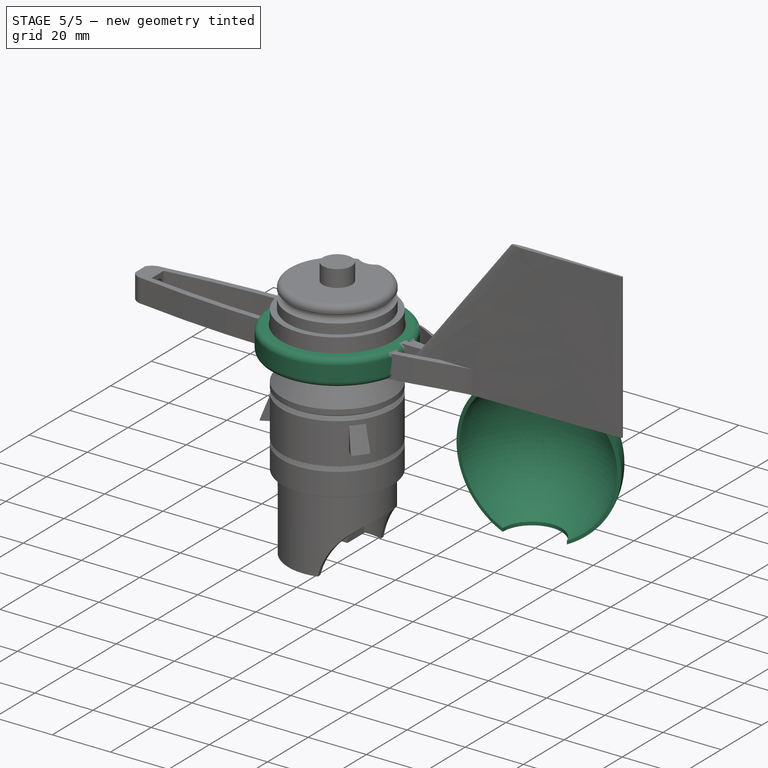
[diagram: stage 5 of 5 — iso view after this stage's code; geometry added in this stage tinted green]
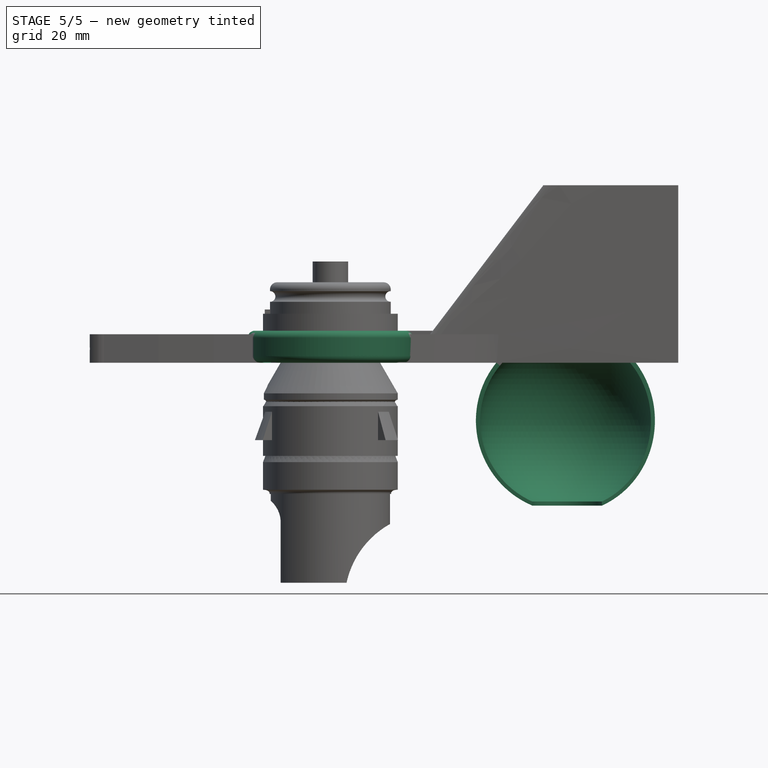
[diagram: stage 5 of 5 — front view after this stage's code; geometry added in this stage tinted green]
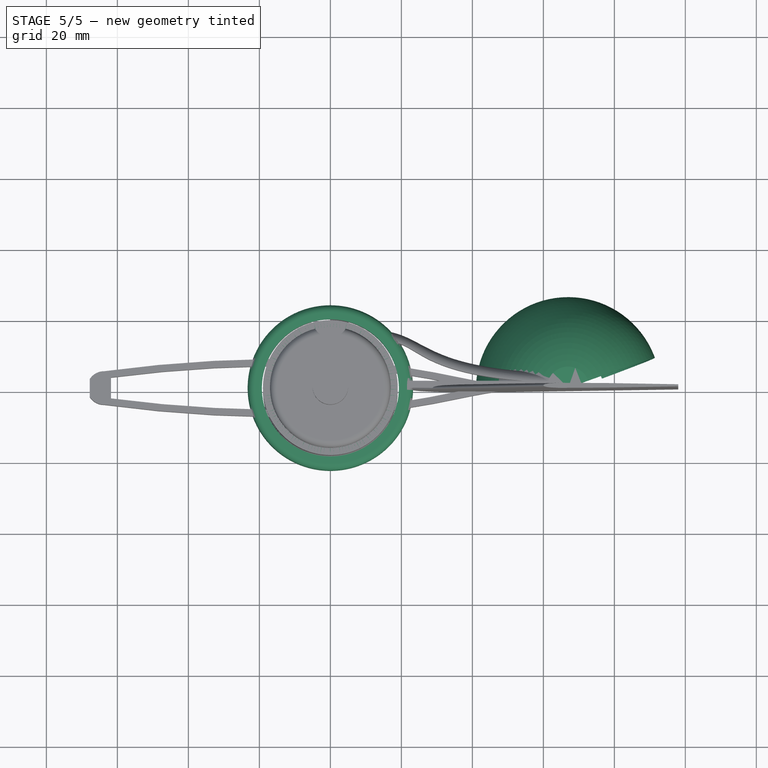
[diagram: stage 5 of 5 — top view after this stage's code; geometry added in this stage tinted green]
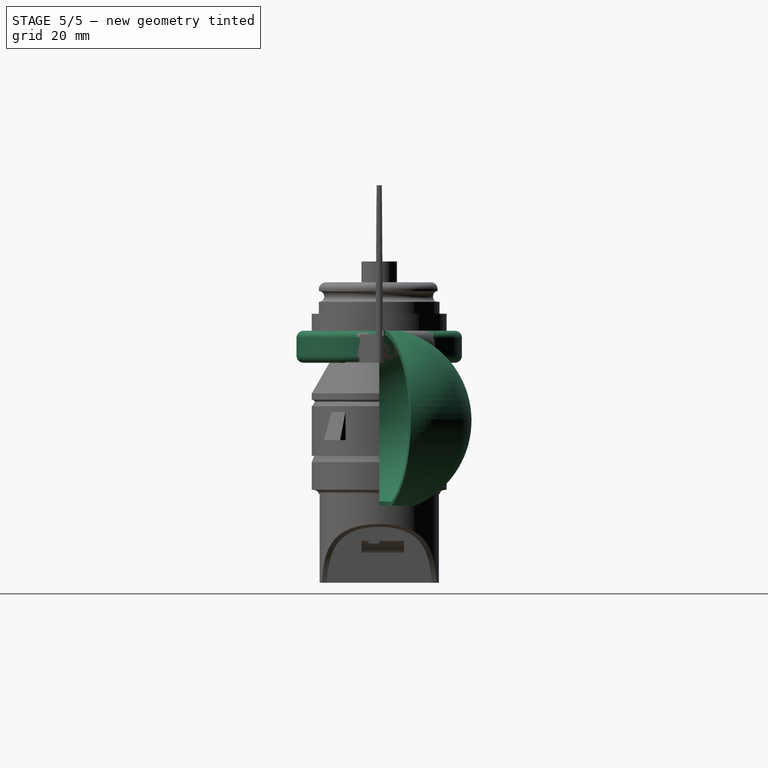
[diagram: stage 5 of 5 — right view after this stage's code; geometry added in this stage tinted green]
FEATURE [Sketcher::SketchObject] Sketch035
  ArcFitTolerance = 0
  AttachmentSupport = -> [YZ_Plane016]
  ExternalTypes = [0]
  FullyConstrained = true
  MakeInternals = false
  MapMode = 5
  Placement = pos=(0,0,0) rot=(0.57735,0.57735,0.57735;2.0944rad)
  _ExternalGeoVersion = 0
  sketch-geometry (12):
    g0: LineSegment StartX=19 StartY=0 StartZ=0 EndX=18.5 EndY=0 EndZ=0
    g1: LineSegment StartX=14 StartY=7.79423 StartZ=0 EndX=18.5 EndY=0 EndZ=0
    g2: LineSegment StartX=5.05 StartY=13.7942 StartZ=0 EndX=19 EndY=13.7942 EndZ=0
    g3: LineSegment StartX=19 StartY=13.7942 StartZ=0 EndX=19 EndY=0 EndZ=0
    g4: LineSegment StartX=5.05 StartY=13.7942 StartZ=0 EndX=5.05 EndY=10.7942 EndZ=0
    g5: LineSegment StartX=5.05 StartY=10.7942 StartZ=0 EndX=6.05 EndY=10.7942 EndZ=0
    g6: LineSegment StartX=6.05 StartY=10.7942 StartZ=0 EndX=6.05 EndY=7.79423 EndZ=0
    g7: LineSegment StartX=6.05 StartY=7.79423 StartZ=0 EndX=6.05 EndY=-1.20577 EndZ=0
    g8: LineSegment StartX=6.05 StartY=-1.20577 StartZ=0 EndX=6.85 EndY=-1.20577 EndZ=0
    g9: LineSegment [constr] StartX=6.05 StartY=7.79423 StartZ=0 EndX=6.85 EndY=7.79423 EndZ=0
    g10: LineSegment StartX=6.85 StartY=7.79423 StartZ=0 EndX=14 EndY=7.79423 EndZ=0
    g11: LineSegment StartX=6.85 StartY=-1.20577 StartZ=0 EndX=6.85 EndY=7.79423 EndZ=0
  constraints (35):
    c: DistanceX(g-1,g0) = 19
    c: DistanceY(g6,g4) = 6
    c: Distance(g4,g-2) = 5.05
    c: Coincident(g9,g6)
    c: Horizontal(g0)
    c: Distance(g0,g0) = 0.5
    c: Coincident(g1,g10)
    c: Coincident(g1,g0)
    c: Distance(g10,g-2) = 14
    c: PointOnObject(g0,g-1)
    c: Coincident(g2,g4)
    c: Horizontal(g2)
    c: Coincident(g3,g0)
    c: Vertical(g3)
    c: Coincident(g2,g3)
    c: Angle(g3,g1) = 0.523599
    c: Coincident(g4,g5)
    c: Vertical(g4)
    c: Coincident(g5,g6)
    c: Horizontal(g5)
    c: Vertical(g6)
    c: Distance(g6,g6) = 3
    c: Distance(g9,g-2) = 6.05
    c: Coincident(g7,g9)
    c: Vertical(g7)
    c: Coincident(g8,g7)
    c: Coincident(g9,g10)
    c: Horizontal(g9)
    c: Horizontal(g10)
    c: Coincident(g11,g9)
    c: Coincident(g11,g8)
    c: Horizontal(g8)
    c: Vertical(g11)
    c: Distance(g8,g8) = 0.8
    c: Distance(g11,g11) = 9
FEATURE [PartDesign::Revolution] Revolution011  label="Revolution-Main003"
  Angle = 360
  Angle2 = 60
  Axis = (0,0,1)
  Base = (0,0,0)
  FuseOrder = 1
  Placement = pos=(0,0,0) rot=(1,1,1;2.0944rad)
  Profile = -> Sketch035
  ReferenceAxis = -> Sketch035 [V_Axis]
  Refine = true
  Reversed = true
  Suppressed = false
  Type = 0
FEATURE [Sketcher::SketchObject] Sketch045
  ArcFitTolerance = 1e-06
  AttacherType = Attacher::AttachEngine3D
  AttachmentOffset = pos=(0,0,0) rot=(0,0,1;3.14159rad)
  AttachmentSupport = -> [XY_Plane020]
  ExternalTypes = [0]
  FullyConstrained = true
  MakeInternals = false
  MapMode = 5
  Placement = pos=(0,0,0) rot=(0,0,1;3.14159rad)
  _ExternalGeoVersion = 0
  sketch-geometry (7):
    g0: LineSegment StartX=1.3625e-12 StartY=-3.55 StartZ=0 EndX=1.4 EndY=-3.55 EndZ=0
    g1: LineSegment StartX=1.4 StartY=-3.55 StartZ=0 EndX=1.4 EndY=3.55 EndZ=0
    g2: LineSegment StartX=1.4 StartY=3.55 StartZ=0 EndX=2e-16 EndY=3.55 EndZ=0
    g3: GeomPoint [constr] X=0 Y=0 Z=0
    g4: LineSegment StartX=2e-16 StartY=3.55 StartZ=0 EndX=2e-16 EndY=2.55 EndZ=0
    g5: LineSegment StartX=1.3625e-12 StartY=-3.55 StartZ=0 EndX=1.3625e-12 EndY=-2.55 EndZ=0
    g6: ArcOfCircle CenterX=0.507445 CenterY=0 CenterZ=0 NormalX=0 NormalY=0 NormalZ=1 AngleXU=0 Radius=2.6 StartAngle=1.76723 EndAngle=4.51596
  constraints (20):
    c: Coincident(g0,g1)
    c: Coincident(g1,g2)
    c: Horizontal(g0)
    c: Horizontal(g2)
    c: Vertical(g1)
    c: Coincident(g3,g-1)
    c: Distance(g1,g1) = 7.1
    c: Distance(g2,g2) = 1.4
    c: Equal(g0,g2)
    c: Distance(g-2,g1) = 1.4
    c: Distance(g4) = 1
    c: Coincident(g4,g2)
    c: Vertical(g4)
    c: Coincident(g5,g0)
    c: Vertical(g5)
    c: Equal(g5,g4)
    c: Coincident(g6,g4)
    c: Coincident(g6,g5)
    c: PointOnObject(g6,g-1)
    c: Radius(g6) = 2.6
FEATURE [PartDesign::Plane] DatumPlane004
  AttachmentOffset = pos=(0,0,0) rot=(0,1,0;2.0944rad)
  AttachmentSupport = -> [YZ_Plane012]
  Length = 79.989
  MapMode = 5
  Placement = pos=(0,0,0) rot=(-0.186157,0.694747,0.694747;3.50969rad)
  ResizeMode = 0
  Width = 61.6877
FEATURE [PartDesign::Plane] DatumPlane005
  AttachmentOffset = pos=(0,0,0) rot=(0,1,0;4.18879rad)
  AttachmentSupport = -> [YZ_Plane012]
  Length = 79.989
  MapMode = 5
  Placement = pos=(0,0,0) rot=(-0.935113,0.250563,0.250563;4.64535rad)
  ResizeMode = 0
  Width = 61.6877
FEATURE [PartDesign::Plane] DatumPlane006
  AttachmentOffset = pos=(0,5,28) rot=(0,1,0;0.523599rad)
  AttachmentSupport = -> [YZ_Plane013]
  Length = 138.073
  MapMode = 5
  Placement = pos=(28,0,5) rot=(0.377964,0.654654,0.654654;2.41886rad)
  ResizeMode = 0
  Width = 82.974
FEATURE [PartDesign::Plane] DatumPlane007
  AttachmentOffset = pos=(0,0,24) rot=(0,0,1;0rad)
  AttachmentSupport = -> [YZ_Plane013]
  Length = 85.2287
  MapMode = 5
  Placement = pos=(24,0,0) rot=(0.57735,0.57735,0.57735;2.0944rad)
  ResizeMode = 0
  Width = 78.9174
FEATURE [PartDesign::Plane] DatumPlane008
  AttachmentOffset = pos=(67,0,0) rot=(0,0,1;0rad)
  AttachmentSupport = -> [XZ_Plane013]
  Length = 134.207
  MapMode = 5
  Placement = pos=(67,0,0) rot=(1,0,0;1.5708rad)
  ResizeMode = 0
  Width = 82.707
FEATURE [Sketcher::SketchObject] Sketch027
  ArcFitTolerance = 1e-06
  AttachmentSupport = -> [YZ_Plane012]
  ExternalTypes = [0]
  FullyConstrained = true
  MakeInternals = false
  MapMode = 5
  Placement = pos=(0,0,0) rot=(0.57735,0.57735,0.57735;2.0944rad)
  _ExternalGeoVersion = 0
  sketch-geometry (9):
    g0: LineSegment [constr] StartX=0 StartY=0 StartZ=0 EndX=19.3 EndY=0 EndZ=0
    g1: LineSegment StartX=19.3 StartY=0 StartZ=0 EndX=21.3 EndY=0 EndZ=0
    g2: LineSegment StartX=23.3 StartY=2 StartZ=0 EndX=23.3 EndY=7 EndZ=0
    g3: LineSegment StartX=21.3 StartY=9 StartZ=0 EndX=19.3 EndY=9 EndZ=0
    g4: LineSegment StartX=19.3 StartY=9 StartZ=0 EndX=19.3 EndY=0 EndZ=0
    g5: ArcOfCircle CenterX=21.3 CenterY=7 CenterZ=0 NormalX=0 NormalY=0 NormalZ=1 AngleXU=0 Radius=2 StartAngle=0 EndAngle=1.5708
    g6: GeomPoint [constr] X=23.3 Y=9 Z=0
    g7: ArcOfCircle CenterX=21.3 CenterY=2 CenterZ=0 NormalX=0 NormalY=0 NormalZ=1 AngleXU=0 Radius=2 StartAngle=4.71239 EndAngle=6.28319
    g8: GeomPoint [constr] X=23.3 Y=0 Z=0
  constraints (22):
    c: Coincident(g0,g-1)
    c: PointOnObject(g0,g-1)
    c: DistanceX(g0,g0) = 19.3
    c: Coincident(g3,g4)
    c: Coincident(g4,g1)
    c: Horizontal(g1)
    c: Horizontal(g3)
    c: Vertical(g2)
    c: Vertical(g4)
    c: Coincident(g1,g0)
    c: Distance(g6,g3) = 4
    c: DistanceY(g8,g6) = 9
    c: PointOnObject(g6,g2)
    c: PointOnObject(g6,g3)
    c: Tangent(g2,g5) = -1.5708
    c: Tangent(g3,g5) = -1.5708
    c: PointOnObject(g8,g1)
    c: PointOnObject(g8,g2)
    c: Tangent(g1,g7) = -1.5708
    c: Tangent(g2,g7) = -1.5708
    c: Radius(g5) = 2
    c: Equal(g5,g7)
FEATURE [PartDesign::Revolution] Revolution008
  Angle = 360
  Angle2 = 60
  Axis = (0,0,1)
  Base = (0,0,0)
  FuseOrder = 1
  Placement = pos=(0,0,0) rot=(1,1,1;2.0944rad)
  Profile = -> Sketch027
  ReferenceAxis = -> Sketch027 [V_Axis]
  Refine = true
  Reversed = true
  Suppressed = false
  Type = 0
FEATURE [Sketcher::SketchObject] Sketch028
  ArcFitTolerance = 1e-06
  AttachmentSupport = -> [YZ_Plane012]
  ExternalTypes = [0]
  FullyConstrained = true
  MakeInternals = false
  MapMode = 5
  Placement = pos=(0,0,0) rot=(0.57735,0.57735,0.57735;2.0944rad)
  _ExternalGeoVersion = 0
  sketch-geometry (4):
    g0: LineSegment [constr] StartX=0 StartY=0 StartZ=0 EndX=19.3 EndY=0 EndZ=0
    g1: LineSegment StartX=19.3 StartY=0 StartZ=0 EndX=22.3 EndY=0 EndZ=0
    g2: LineSegment StartX=19.3 StartY=0 StartZ=0 EndX=19.3 EndY=6 EndZ=0
    g3: LineSegment StartX=19.3 StartY=6 StartZ=0 EndX=22.3 EndY=0 EndZ=0
  constraints (11):
    c: Distance(g0) = 19.3
    c: PointOnObject(g0,g-1)
    c: Coincident(g1,g0)
    c: PointOnObject(g1,g-1)
    c: Distance(g2) = 6
    c: Coincident(g2,g0)
    c: Vertical(g2)
    c: Coincident(g3,g2)
    c: Coincident(g3,g1)
    c: DistanceX(g1,g1) = 3
    c: Coincident(g0,g-1)
FEATURE [PartDesign::Groove] Groove
  Angle = 16
  Angle2 = 0
  Axis = (0,0,1)
  Base = (0,0,0)
  BaseFeature = -> Revolution008
  Placement = pos=(0,0,0) rot=(1,1,1;2.0944rad)
  Profile = -> Sketch028
  ReferenceAxis = -> Sketch028 [V_Axis]
  Refine = true
  Suppressed = false
  Type = 0
FEATURE [Sketcher::SketchObject] Sketch029
  ArcFitTolerance = 1e-06
  AttachmentSupport = -> [DatumPlane004]
  ExternalTypes = [0]
  FullyConstrained = true
  MakeInternals = false
  MapMode = 5
  Placement = pos=(0,0,0) rot=(-0.186157,0.694747,0.694747;3.50969rad)
  _ExternalGeoVersion = 0
  expr: Constraints[0] = Sketch028.Constraints[0]
  expr: Constraints[4] = Sketch028.Constraints[4]
  expr: Constraints[9] = Sketch028.Constraints[9]
  sketch-geometry (4):
    g0: LineSegment [constr] StartX=0 StartY=0 StartZ=0 EndX=19.3 EndY=0 EndZ=0
    g1: LineSegment StartX=19.3 StartY=0 StartZ=0 EndX=22.3 EndY=0 EndZ=0
    g2: LineSegment StartX=19.3 StartY=0 StartZ=0 EndX=19.3 EndY=6 EndZ=0
    g3: LineSegment StartX=19.3 StartY=6 StartZ=0 EndX=22.3 EndY=0 EndZ=0
  constraints (11):
    c: Distance(g0) = 19.3
    c: PointOnObject(g0,g-1)
    c: Coincident(g1,g0)
    c: PointOnObject(g1,g-1)
    c: Distance(g2) = 6
    c: Coincident(g2,g0)
    c: Vertical(g2)
    c: Coincident(g3,g2)
    c: Coincident(g3,g1)
    c: DistanceX(g1,g1) = 3
    c: Coincident(g0,g-1)
FEATURE [PartDesign::Groove] Groove001
  Angle = 16
  Angle2 = 60
  Axis = (-1e-16,3e-16,1)
  Base = (0,0,0)
  BaseFeature = -> Groove
  Placement = pos=(0,0,0) rot=(1,1,1;2.0944rad)
  Profile = -> Sketch029
  ReferenceAxis = -> Sketch029 [V_Axis]
  Refine = true
  Suppressed = false
  Type = 0
FEATURE [Sketcher::SketchObject] Sketch030
  ArcFitTolerance = 1e-06
  AttachmentSupport = -> [DatumPlane005]
  ExternalTypes = [0]
  FullyConstrained = true
  MakeInternals = false
  MapMode = 5
  Placement = pos=(0,0,0) rot=(0.935113,-0.250563,-0.250563;1.63783rad)
  _ExternalGeoVersion = 0
FEATURE [Sketcher::SketchObject] Sketch047
  ArcFitTolerance = 1e-06
  AttachmentSupport = -> [DatumPlane005]
  ExternalTypes = [0]
  FullyConstrained = true
  MakeInternals = false
  MapMode = 5
  Placement = pos=(0,0,0) rot=(0.935113,-0.250563,-0.250563;1.63783rad)
  _ExternalGeoVersion = 0
  expr: Constraints[0] = Sketch029.Constraints[0]
  expr: Constraints[4] = Sketch029.Constraints[4]
  expr: Constraints[9] = Sketch029.Constraints[9]
  sketch-geometry (4):
    g0: LineSegment [constr] StartX=0 StartY=0 StartZ=0 EndX=19.3 EndY=0 EndZ=0
    g1: LineSegment StartX=19.3 StartY=0 StartZ=0 EndX=22.3 EndY=0 EndZ=0
    g2: LineSegment StartX=19.3 StartY=0 StartZ=0 EndX=19.3 EndY=6 EndZ=0
    g3: LineSegment StartX=19.3 StartY=6 StartZ=0 EndX=22.3 EndY=0 EndZ=0
  constraints (11):
    c: Distance(g0) = 19.3
    c: PointOnObject(g0,g-1)
    c: Coincident(g1,g0)
    c: PointOnObject(g1,g-1)
    c: Distance(g2) = 6
    c: Coincident(g2,g0)
    c: Vertical(g2)
    c: Coincident(g3,g2)
    c: Coincident(g3,g1)
    c: DistanceX(g1,g1) = 3
    c: Coincident(g0,g-1)
FEATURE [PartDesign::Groove] Groove002
  Angle = 16
  Angle2 = 60
  Axis = (1e-16,2e-16,1)
  Base = (0,0,0)
  BaseFeature = -> Groove001
  Placement = pos=(0,0,0) rot=(1,1,1;2.0944rad)
  Profile = -> Sketch047
  ReferenceAxis = -> Sketch047 [V_Axis]
  Refine = true
  Suppressed = false
  Type = 0
FEATURE [Sketcher::SketchObject] Sketch050
  ArcFitTolerance = 1e-06
  AttachmentSupport = -> [DatumPlane008]
  ExternalTypes = [0]
  FullyConstrained = true
  MakeInternals = false
  MapMode = 5
  Placement = pos=(67,0,0) rot=(1,0,0;1.5708rad)
  _ExternalGeoVersion = 0
  sketch-geometry (5):
    g0: ArcOfCircle CenterX=0 CenterY=-16.2982 CenterZ=0 NormalX=0 NormalY=0 NormalZ=1 AngleXU=0 Radius=26 StartAngle=1.80366 EndAngle=4.3176
    g1: LineSegment [constr] StartX=-10 StartY=-40.2982 StartZ=0 EndX=0 EndY=-40.2982 EndZ=0
    g2: LineSegment StartX=-10 StartY=-40.2982 StartZ=0 EndX=0 EndY=-40.2982 EndZ=0
    g3: LineSegment StartX=-6 StartY=9 StartZ=0 EndX=0 EndY=9 EndZ=0
    g4: LineSegment StartX=0 StartY=9 StartZ=0 EndX=0 EndY=-40.2982 EndZ=0
  constraints (15):
    c: PointOnObject(g0,g-2)
    c: Radius(g0) = 26
    c: DistanceY(g-1,g0) = 9
    c: Coincident(g1,g0)
    c: Horizontal(g1)
    c: DistanceX(g1,g1) = 10
    c: PointOnObject(g1,g-2)
    c: Coincident(g2,g1)
    c: Coincident(g3,g0)
    c: PointOnObject(g3,g-2)
    c: Horizontal(g3)
    c: DistanceX(g3,g3) = 6
    c: Coincident(g2,g0)
    c: Coincident(g4,g3)
    c: Coincident(g4,g1)
FEATURE [PartDesign::Revolution] Revolution009
  Angle = 160
  Angle2 = 60
  Axis = (0,2e-16,1)
  Base = (67,0,0)
  BaseFeature = -> AdditivePipe001
  FuseOrder = 1
  Placement = pos=(28,0,5) rot=(0.377964,0.654654,0.654654;2.41886rad)
  Profile = -> Sketch050
  ReferenceAxis = -> Sketch050 [V_Axis]
  Refine = true
  Reversed = true
  Suppressed = false
  Type = 0
FEATURE [Sketcher::SketchObject] Sketch051
  ArcFitTolerance = 1e-06
  AttachmentSupport = -> [DatumPlane008]
  ExternalTypes = [0]
  FullyConstrained = true
  MakeInternals = false
  MapMode = 5
  Placement = pos=(67,0,0) rot=(1,0,0;1.5708rad)
  _ExternalGeoVersion = 0
  sketch-geometry (5):
    g0: LineSegment StartX=0 StartY=7.6 StartZ=0 EndX=0 EndY=-47.96 EndZ=0
    g1: LineSegment StartX=-6 StartY=7.6 StartZ=0 EndX=0 EndY=7.6 EndZ=0
    g2: ArcOfCircle CenterX=0 CenterY=-16.4632 CenterZ=0 NormalX=0 NormalY=0 NormalZ=1 AngleXU=0 Radius=24.8 StartAngle=1.81516 EndAngle=4.29235
    g3: LineSegment StartX=-10.1133 StartY=-39.1075 StartZ=0 EndX=-10.1133 EndY=-47.96 EndZ=0
    g4: LineSegment StartX=-10.1133 StartY=-47.96 StartZ=0 EndX=0 EndY=-47.96 EndZ=0
  constraints (16):
    c: PointOnObject(g0,g-2)
    c: Vertical(g0)
    c: Coincident(g1,g2)
    c: DistanceY(g-1,g0) = 7.6
    c: Coincident(g1,g0)
    c: Horizontal(g1)
    c: DistanceX(g2) = -6
    c: PointOnObject(g2,g0)
    c: Radius(g2) = 24.8
    c: Coincident(g3,g2)
    c: Vertical(g3)
    c: Coincident(g4,g3)
    c: Coincident(g4,g0)
    c: Horizontal(g4)
    c: DistanceX(g3) = -10.1133
    c: DistanceY(g0,g-1) = 47.96
FEATURE [PartDesign::Groove] Groove003
  Angle = 180
  Angle2 = 60
  Axis = (0,2e-16,1)
  Base = (67,0,0)
  BaseFeature = -> Revolution009
  Placement = pos=(28,0,5) rot=(0.377964,0.654654,0.654654;2.41886rad)
  Profile = -> Sketch051
  ReferenceAxis = -> Sketch051 [V_Axis]
  Refine = true
  Reversed = true
  Suppressed = false
  Type = 0
FEATURE [PartDesign::Body] Body009  label="Branch 1"
  AllowCompound = false
  Group = -> [Sketch033,DatumPlane006,Sketch034,AdditivePipe,DatumPlane007,Sketch048,Sketch049,AdditivePipe001,DatumPlane008,Sketch050,Revolution009,Sketch051,Groove003]
  Origin = -> Origin013
  Tip = -> Groove003
FEATURE [PartDesign::FeatureBase] Clone
  BaseFeature = -> Body009
  Suppressed = false
FEATURE [PartDesign::Body] Body010  label="Branch 2"
  AllowCompound = false
  Group = -> [Clone]
  Origin = -> Origin014
  Placement = pos=(0,0,0) rot=(0,0,1;2.0944rad)
  Tip = -> Clone
FEATURE [PartDesign::FeatureBase] Clone001
  BaseFeature = -> Body009
  Suppressed = false
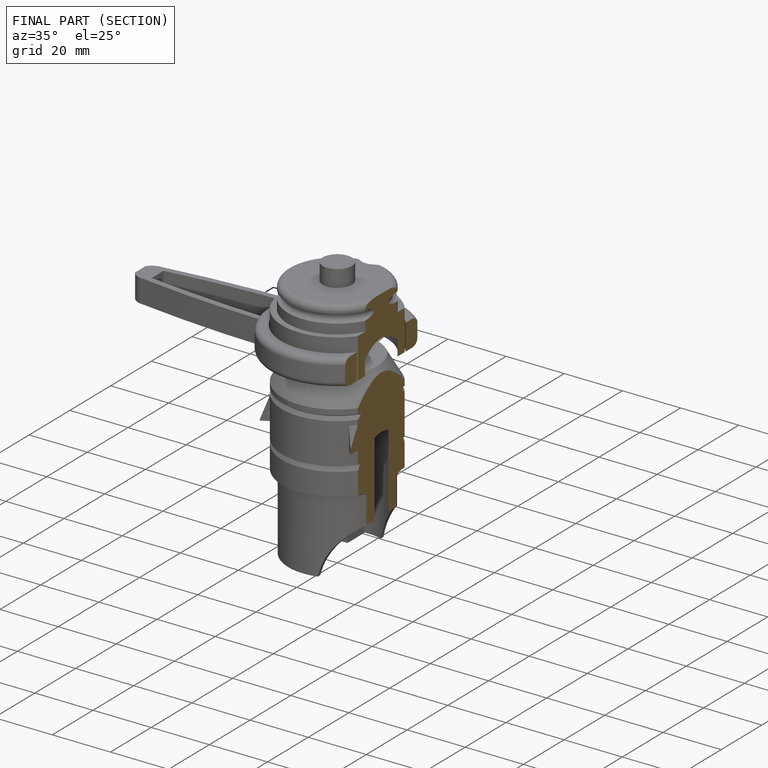
[diagram: finished part — half-section view (interior)]
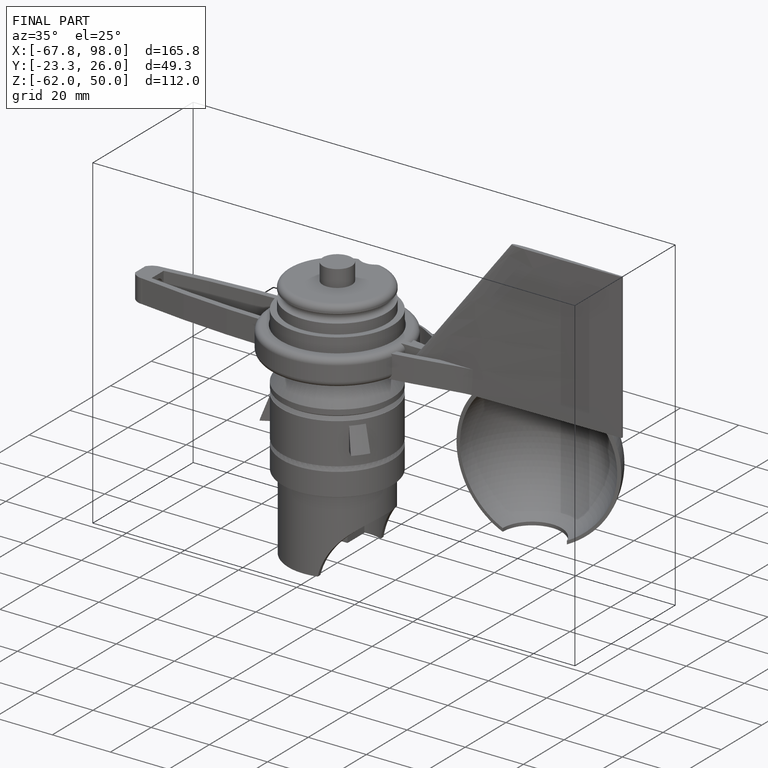
[diagram: finished part — iso view with bounding-box wireframe]
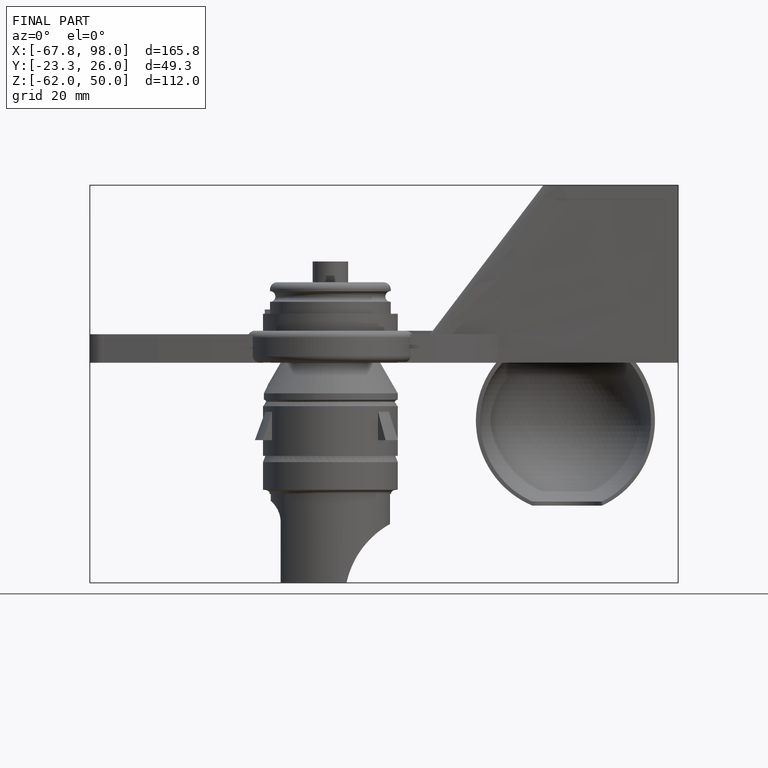
[diagram: finished part — front view with bounding-box wireframe]
